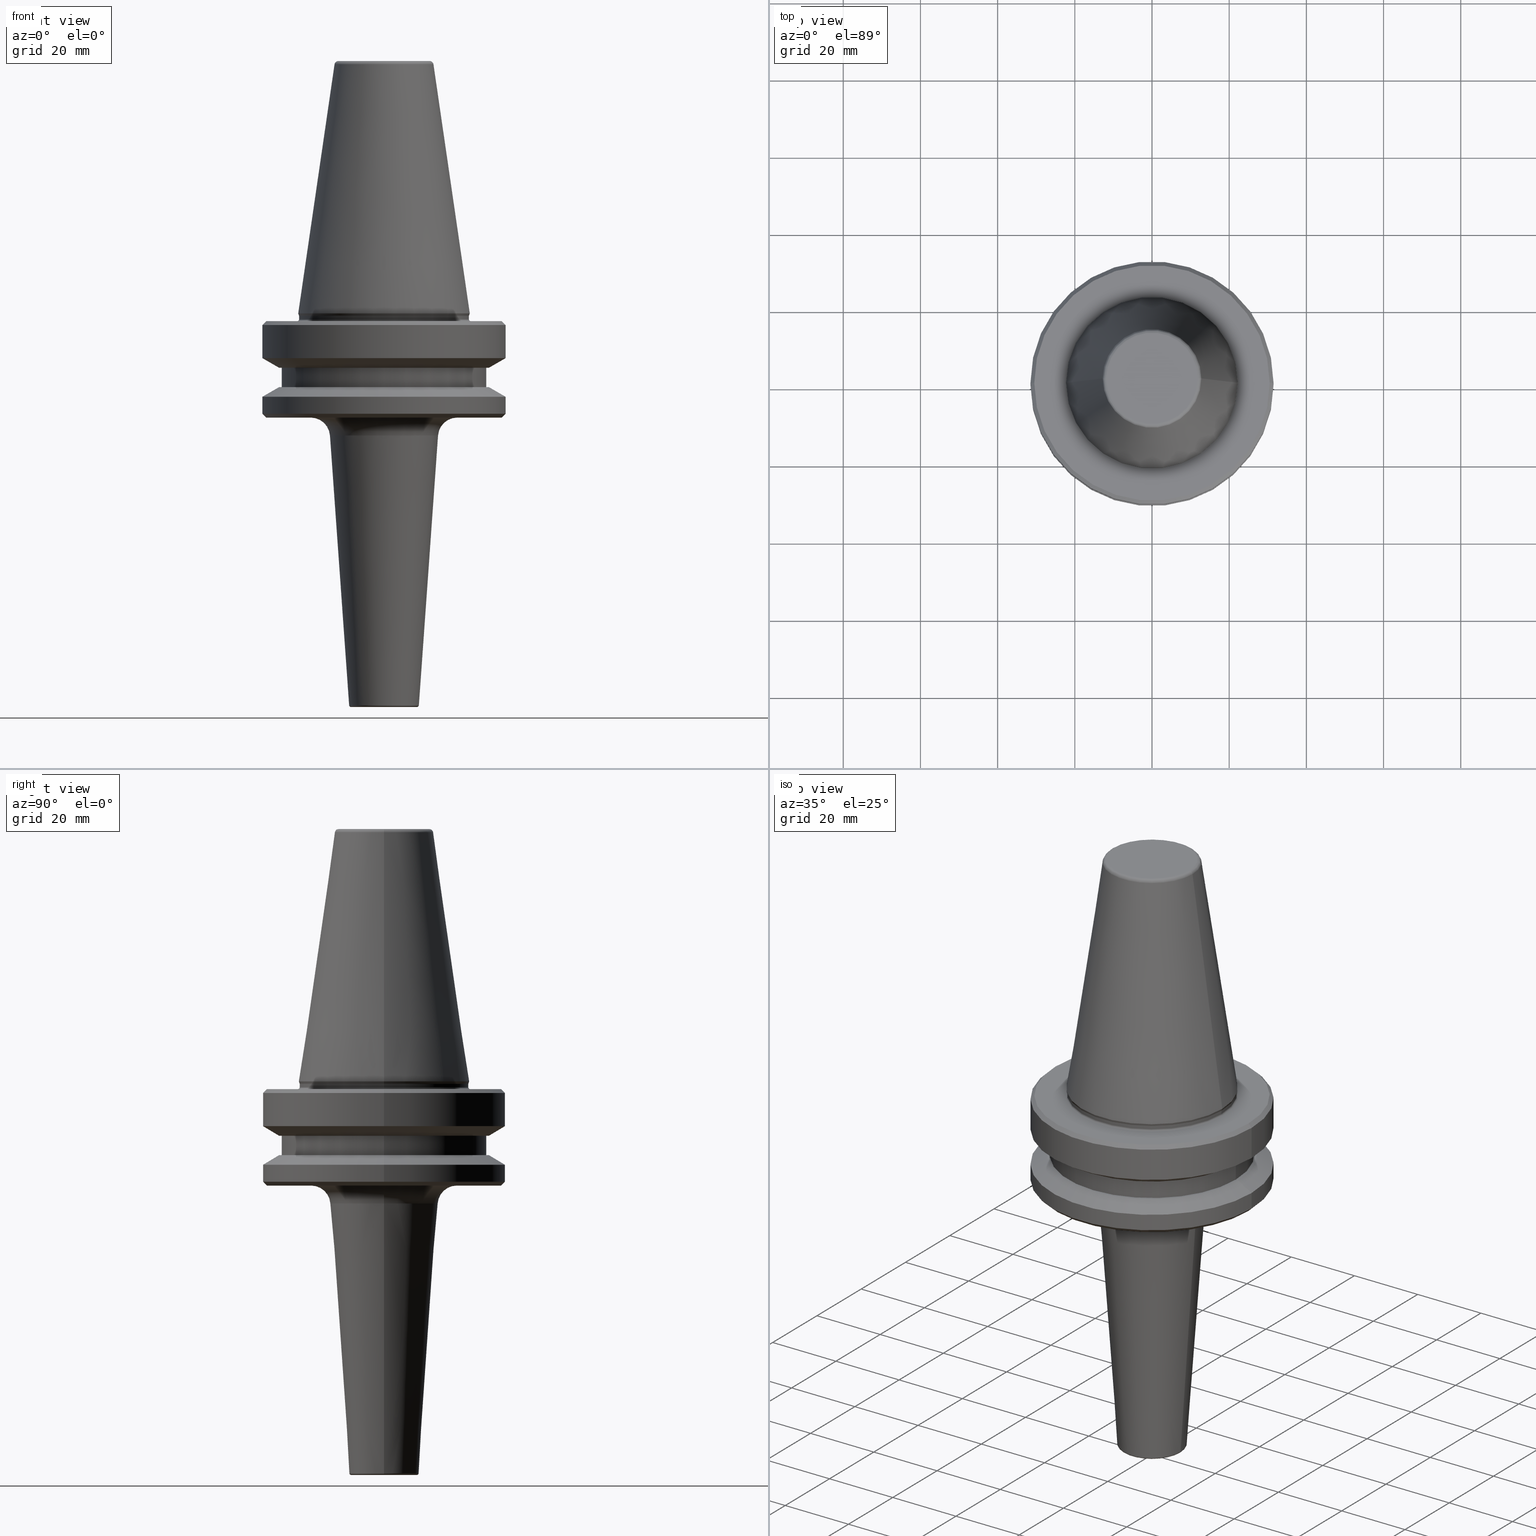
[diagram: canonical four-view strip — front | top / right | iso, engineering-drawing reading convention]
A machine part, canonical four-view strip (front | top / right | iso — engineering-drawing reading convention). The complete STEP part file that produces these views, byte-faithful:
ISO-10303-21;
HEADER;
FILE_DESCRIPTION (( 'STEP AP203' ),
    '1' );
FILE_NAME ('BT40 MCA10 075 AD+B-2.5G 25000 SL.STEP',
    '2019-05-24T10:01:36',
    ( '' ),
    ( '' ),
    'SwSTEP 2.0',
    'SolidWorks 2014',
    '' );
FILE_SCHEMA (( 'CONFIG_CONTROL_DESIGN' ));
ENDSEC;

DATA;
#1 = AXIS2_PLACEMENT_3D ( 'NONE', #465, #622, #132 ) ;
#2 = EDGE_LOOP ( 'NONE', ( #570, #125, #295, #734 ) ) ;
#3 = DIRECTION ( 'NONE',  ( 1.000000000000000000, 0.0000000000000000000, 0.0000000000000000000 ) ) ;
#4 = FACE_OUTER_BOUND ( 'NONE', #796, .T. ) ;
#5 = ORIENTED_EDGE ( 'NONE', *, *, #100, .T. ) ;
#6 = AXIS2_PLACEMENT_3D ( 'NONE', #441, #849, #234 ) ;
#7 = FACE_OUTER_BOUND ( 'NONE', #467, .T. ) ;
#8 = FACE_OUTER_BOUND ( 'NONE', #904, .T. ) ;
#9 = ORIENTED_EDGE ( 'NONE', *, *, #832, .T. ) ;
#10 = FACE_OUTER_BOUND ( 'NONE', #2, .T. ) ;
#11 = DIRECTION ( 'NONE',  ( 1.000000000000000000, 0.0000000000000000000, 0.0000000000000000000 ) ) ;
#12 = EDGE_CURVE ( 'NONE', #233, #459, #845, .T. ) ;
#13 = DIRECTION ( 'NONE',  ( -0.0000000000000000000, -0.0000000000000000000, 1.000000000000000000 ) ) ;
#14 = VERTEX_POINT ( 'NONE', #81 ) ;
#15 = CARTESIAN_POINT ( 'NONE',  ( 0.0000000000000000000, 0.0000000000000000000, -67.40000000000034700 ) ) ;
#16 = CIRCLE ( 'NONE', #935, 31.50000000000008500 ) ;
#17 = EDGE_LOOP ( 'NONE', ( #345, #757, #513, #543 ) ) ;
#18 = DIRECTION ( 'NONE',  ( 1.000000000000000000, 0.0000000000000000000, 0.0000000000000000000 ) ) ;
#19 = EDGE_LOOP ( 'NONE', ( #951, #50, #494, #405 ) ) ;
#20 = ORIENTED_EDGE ( 'NONE', *, *, #133, .T. ) ;
#21 = DIRECTION ( 'NONE',  ( -0.0000000000000000000, -0.0000000000000000000, 1.000000000000000000 ) ) ;
#22 = PRODUCT_DEFINITION_FORMATION_WITH_SPECIFIED_SOURCE ( 'ANY', '', #512, .NOT_KNOWN. ) ;
#23 = DIRECTION ( 'NONE',  ( 0.0000000000000000000, -1.000000000000000000, 0.0000000000000000000 ) ) ;
#24 = APPROVAL_PERSON_ORGANIZATION ( #259, #86, #420 ) ;
#25 = DIRECTION ( 'NONE',  ( 1.000000000000000000, 0.0000000000000000000, 0.0000000000000000000 ) ) ;
#26 = CARTESIAN_POINT ( 'NONE',  ( 0.0000000000000000000, 0.0000000000000000000, -97.40000000000804900 ) ) ;
#27 = AXIS2_PLACEMENT_3D ( 'NONE', #121, #28, #135 ) ;
#28 = DIRECTION ( 'NONE',  ( -0.0000000000000000000, -0.0000000000000000000, 1.000000000000000000 ) ) ;
#29 = PLANE ( 'NONE',  #173 ) ;
#30 = DIRECTION ( 'NONE',  ( 1.000000000000000000, 0.0000000000000000000, 0.0000000000000000000 ) ) ;
#31 = FACE_OUTER_BOUND ( 'NONE', #375, .T. ) ;
#32 = PLANE ( 'NONE',  #371 ) ;
#33 = EDGE_CURVE ( 'NONE', #722, #586, #1043, .T. ) ;
#34 = ORIENTED_EDGE ( 'NONE', *, *, #507, .F. ) ;
#35 = ADVANCED_FACE ( 'NONE', ( #1050 ), #409, .F. ) ;
#36 = CARTESIAN_POINT ( 'NONE',  ( 0.0000000000000000000, 0.0000000000000000000, 6.357346922996331500 ) ) ;
#37 = LINE ( 'NONE', #523, #889 ) ;
#38 = CARTESIAN_POINT ( 'NONE',  ( 14.00000000000000500, 0.0000000000000000000, -97.04555044078098500 ) ) ;
#39 = DIRECTION ( 'NONE',  ( 0.0000000000000000000, 0.0000000000000000000, -1.000000000000000000 ) ) ;
#40 = ORIENTED_EDGE ( 'NONE', *, *, #216, .T. ) ;
#41 = CYLINDRICAL_SURFACE ( 'NONE', #45, 31.50000000000008500 ) ;
#42 = DIRECTION ( 'NONE',  ( 0.0000000000000000000, 0.0000000000000000000, -1.000000000000000000 ) ) ;
#43 = ORIENTED_EDGE ( 'NONE', *, *, #532, .T. ) ;
#44 = FACE_OUTER_BOUND ( 'NONE', #318, .T. ) ;
#45 = AXIS2_PLACEMENT_3D ( 'NONE', #36, #372, #864 ) ;
#46 = DIRECTION ( 'NONE',  ( 1.000000000000000000, 0.0000000000000000000, 0.0000000000000000000 ) ) ;
#47 = ORIENTED_EDGE ( 'NONE', *, *, #93, .T. ) ;
#48 = AXIS2_PLACEMENT_3D ( 'NONE', #749, #122, #306 ) ;
#49 = VERTEX_POINT ( 'NONE', #584 ) ;
#50 = ORIENTED_EDGE ( 'NONE', *, *, #920, .T. ) ;
#51 = VERTEX_POINT ( 'NONE', #604 ) ;
#52 = CARTESIAN_POINT ( 'NONE',  ( 0.0000000000000000000, 0.0000000000000000000, -4.440892098500626200E-013 ) ) ;
#53 = DIRECTION ( 'NONE',  ( -0.0000000000000000000, -0.0000000000000000000, 1.000000000000000000 ) ) ;
#54 = ADVANCED_FACE ( 'NONE', ( #627 ), #727, .T. ) ;
#55 = COORDINATED_UNIVERSAL_TIME_OFFSET ( 5, 30, .AHEAD. ) ;
#56 = CARTESIAN_POINT ( 'NONE',  ( 31.50000000000008500, 0.0000000000000000000, -76.99985799368391800 ) ) ;
#57 = EDGE_CURVE ( 'NONE', #321, #722, #1024, .T. ) ;
#58 = DIRECTION ( 'NONE',  ( -0.0000000000000000000, -0.0000000000000000000, 1.000000000000000000 ) ) ;
#59 = CARTESIAN_POINT ( 'NONE',  ( 0.0000000000000000000, 0.0000000000000000000, -79.50000000000012800 ) ) ;
#60 = ADVANCED_FACE ( 'NONE', ( #200 ), #284, .T. ) ;
#61 = VECTOR ( 'NONE', #671, 1000.000000000000000 ) ;
#62 = ORIENTED_EDGE ( 'NONE', *, *, #133, .F. ) ;
#63 = ADVANCED_FACE ( 'NONE', ( #90 ), #911, .T. ) ;
#64 = FACE_BOUND ( 'NONE', #827, .T. ) ;
#65 = ORIENTED_EDGE ( 'NONE', *, *, #404, .F. ) ;
#66 = FACE_OUTER_BOUND ( 'NONE', #339, .T. ) ;
#67 = AXIS2_PLACEMENT_3D ( 'NONE', #355, #352, #195 ) ;
#68 = CARTESIAN_POINT ( 'NONE',  ( 31.50000000000008500, 0.0000000000000000000, 6.357346922996331500 ) ) ;
#69 = CARTESIAN_POINT ( 'NONE',  ( -12.81220206925736900, 0.0000000000000000000, -0.8556918111122247000 ) ) ;
#70 = ORIENTED_EDGE ( 'NONE', *, *, #207, .F. ) ;
#71 = EDGE_CURVE ( 'NONE', #943, #644, #312, .T. ) ;
#72 = ORIENTED_EDGE ( 'NONE', *, *, #492, .T. ) ;
#73 = EDGE_CURVE ( 'NONE', #459, #233, #938, .T. ) ;
#74 = CARTESIAN_POINT ( 'NONE',  ( 0.0000000000000000000, 0.0000000000000000000, -0.8556918111122247000 ) ) ;
#75 = DIRECTION ( 'NONE',  ( 1.000000000000000000, 0.0000000000000000000, 0.0000000000000000000 ) ) ;
#76 = EDGE_LOOP ( 'NONE', ( #867, #550, #1001, #839 ) ) ;
#77 = ORIENTED_EDGE ( 'NONE', *, *, #809, .T. ) ;
#78 = CARTESIAN_POINT ( 'NONE',  ( 12.81220206925736900, 2.145409868259749100E-015, -0.8556918111122247000 ) ) ;
#79 = VERTEX_POINT ( 'NONE', #136 ) ;
#80 = ORIENTED_EDGE ( 'NONE', *, *, #73, .T. ) ;
#81 = CARTESIAN_POINT ( 'NONE',  ( -14.00000000000000500, 2.019896960283764800E-015, -97.04555044078098500 ) ) ;
#82 = CIRCLE ( 'NONE', #735, 12.81220206925736900 ) ;
#83 = CARTESIAN_POINT ( 'NONE',  ( 0.0000000000000000000, 0.0000000000000000000, -67.40000000000034700 ) ) ;
#84 = LOCAL_TIME ( 15, 31, 36.00000000000000000, #303 ) ;
#85 = ADVANCED_FACE ( 'NONE', ( #693 ), #668, .T. ) ;
#86 = APPROVAL ( #912, 'UNSPECIFIED' ) ;
#87 = CARTESIAN_POINT ( 'NONE',  ( 0.0000000000000000000, 0.0000000000000000000, -92.40000000000803500 ) ) ;
#88 = EDGE_CURVE ( 'NONE', #799, #816, #887, .T. ) ;
#89 = ORIENTED_EDGE ( 'NONE', *, *, #1000, .T. ) ;
#90 = FACE_OUTER_BOUND ( 'NONE', #308, .T. ) ;
#91 = AXIS2_PLACEMENT_3D ( 'NONE', #502, #334, #360 ) ;
#92 = VERTEX_POINT ( 'NONE', #462 ) ;
#93 = EDGE_CURVE ( 'NONE', #436, #799, #262, .T. ) ;
#94 = ADVANCED_FACE ( 'NONE', ( #31 ), #647, .T. ) ;
#95 = CIRCLE ( 'NONE', #1048, 5.000000000000008000 ) ;
#96 = VERTEX_POINT ( 'NONE', #113 ) ;
#97 = CARTESIAN_POINT ( 'NONE',  ( 0.0000000000000000000, 0.0000000000000000000, 0.0000000000000000000 ) ) ;
#98 = ORIENTED_EDGE ( 'NONE', *, *, #699, .T. ) ;
#99 = VERTEX_POINT ( 'NONE', #211 ) ;
#100 = EDGE_CURVE ( 'NONE', #595, #435, #243, .T. ) ;
#101 = CARTESIAN_POINT ( 'NONE',  ( 0.0000000000000000000, 0.0000000000000000000, -65.40000000000057400 ) ) ;
#102 = ORIENTED_EDGE ( 'NONE', *, *, #232, .T. ) ;
#103 = AXIS2_PLACEMENT_3D ( 'NONE', #448, #455, #470 ) ;
#104 = VECTOR ( 'NONE', #1019, 1000.000000000000000 ) ;
#105 = CARTESIAN_POINT ( 'NONE',  ( 0.0000000000000000000, 0.0000000000000000000, -0.8556918111122247000 ) ) ;
#106 = ORGANIZATION ( 'UNSPECIFIED', 'UNSPECIFIED', '' ) ;
#107 = AXIS2_PLACEMENT_3D ( 'NONE', #403, #692, #937 ) ;
#108 = DIRECTION ( 'NONE',  ( 1.000000000000000000, 0.0000000000000000000, 0.0000000000000000000 ) ) ;
#109 = DIRECTION ( 'NONE',  ( 1.000000000000000000, 0.0000000000000000000, 0.0000000000000000000 ) ) ;
#110 = EDGE_CURVE ( 'NONE', #895, #943, #454, .T. ) ;
#111 = VECTOR ( 'NONE', #489, 1000.000000000000000 ) ;
#112 = DIRECTION ( 'NONE',  ( 0.07088991184540963100, 0.0000000000000000000, 0.9974841454371843300 ) ) ;
#113 = CARTESIAN_POINT ( 'NONE',  ( -30.49999999999997200, 0.0000000000000000000, -67.40000000000034700 ) ) ;
#114 = ORIENTED_EDGE ( 'NONE', *, *, #812, .T. ) ;
#115 = DIRECTION ( 'NONE',  ( 1.000000000000000000, 0.0000000000000000000, 0.0000000000000000000 ) ) ;
#116 = VECTOR ( 'NONE', #281, 1000.000000000000000 ) ;
#117 = ORIENTED_EDGE ( 'NONE', *, *, #276, .T. ) ;
#118 = ADVANCED_FACE ( 'NONE', ( #4 ), #834, .T. ) ;
#119 = VERTEX_POINT ( 'NONE', #808 ) ;
#120 = DIRECTION ( 'NONE',  ( -0.8660254037844383700, 1.060575238724906500E-016, 0.5000000000000003300 ) ) ;
#121 = CARTESIAN_POINT ( 'NONE',  ( 0.0000000000000000000, 0.0000000000000000000, -66.08871321165987900 ) ) ;
#122 = DIRECTION ( 'NONE',  ( -0.0000000000000000000, -0.0000000000000000000, 1.000000000000000000 ) ) ;
#123 = AXIS2_PLACEMENT_3D ( 'NONE', #74, #396, #235 ) ;
#124 = DIRECTION ( 'NONE',  ( 1.000000000000000000, 0.0000000000000000000, 0.0000000000000000000 ) ) ;
#125 = ORIENTED_EDGE ( 'NONE', *, *, #532, .F. ) ;
#126 = PERSON_AND_ORGANIZATION_ROLE ( 'classification_officer' ) ;
#127 = ADVANCED_FACE ( 'NONE', ( #422 ), #479, .F. ) ;
#128 = EDGE_CURVE ( 'NONE', #519, #547, #1035, .T. ) ;
#129 = CIRCLE ( 'NONE', #614, 31.50000000000008500 ) ;
#130 = ORIENTED_EDGE ( 'NONE', *, *, #232, .F. ) ;
#131 = DIRECTION ( 'NONE',  ( -0.0000000000000000000, -0.0000000000000000000, 1.000000000000000000 ) ) ;
#132 = DIRECTION ( 'NONE',  ( 1.000000000000000000, 0.0000000000000000000, 0.0000000000000000000 ) ) ;
#133 = EDGE_CURVE ( 'NONE', #464, #92, #865, .T. ) ;
#134 = CIRCLE ( 'NONE', #518, 27.16962701892322600 ) ;
#135 = DIRECTION ( 'NONE',  ( 1.000000000000000000, 0.0000000000000000000, 0.0000000000000000000 ) ) ;
#136 = CARTESIAN_POINT ( 'NONE',  ( 22.02412295168553100, 0.0000000000000000000, -65.95190515433003500 ) ) ;
#137 = DIRECTION ( 'NONE',  ( -1.000000000000000000, 0.0000000000000000000, 0.0000000000000000000 ) ) ;
#138 = CARTESIAN_POINT ( 'NONE',  ( 0.0000000000000000000, 0.0000000000000000000, -66.90000000000040400 ) ) ;
#139 = ORIENTED_EDGE ( 'NONE', *, *, #283, .T. ) ;
#140 = CIRCLE ( 'NONE', #806, 0.9999999999999696900 ) ;
#141 = CC_DESIGN_APPROVAL ( #86, ( #22 ) ) ;
#142 = DIRECTION ( 'NONE',  ( 1.000000000000000000, 0.0000000000000000000, 0.0000000000000000000 ) ) ;
#143 = DIRECTION ( 'NONE',  ( 1.224646799147353200E-016, 1.000000000000000000, 0.0000000000000000000 ) ) ;
#144 = DIRECTION ( 'NONE',  ( 1.000000000000000000, 0.0000000000000000000, 0.0000000000000000000 ) ) ;
#145 = EDGE_CURVE ( 'NONE', #49, #947, #508, .T. ) ;
#146 = ADVANCED_FACE ( 'NONE', ( #615 ), #397, .T. ) ;
#147 = VERTEX_POINT ( 'NONE', #677 ) ;
#148 = DIRECTION ( 'NONE',  ( -0.0000000000000000000, -0.0000000000000000000, 1.000000000000000000 ) ) ;
#149 = DIRECTION ( 'NONE',  ( 0.0000000000000000000, 0.0000000000000000000, -1.000000000000000000 ) ) ;
#150 = ORIENTED_EDGE ( 'NONE', *, *, #1008, .T. ) ;
#151 = FACE_OUTER_BOUND ( 'NONE', #495, .T. ) ;
#152 = AXIS2_PLACEMENT_3D ( 'NONE', #378, #599, #115 ) ;
#153 = APPROVAL_DATE_TIME ( #369, #474 ) ;
#154 = ORIENTED_EDGE ( 'NONE', *, *, #507, .T. ) ;
#155 = CARTESIAN_POINT ( 'NONE',  ( 0.0000000000000000000, 0.0000000000000000000, -87.00014200631733300 ) ) ;
#156 = ORIENTED_EDGE ( 'NONE', *, *, #920, .F. ) ;
#157 = DIRECTION ( 'NONE',  ( 1.000000000000000000, 0.0000000000000000000, 0.0000000000000000000 ) ) ;
#158 = DIRECTION ( 'NONE',  ( 1.000000000000000000, 0.0000000000000000000, 0.0000000000000000000 ) ) ;
#159 = FACE_OUTER_BOUND ( 'NONE', #994, .T. ) ;
#160 = ORIENTED_EDGE ( 'NONE', *, *, #407, .T. ) ;
#161 = CIRCLE ( 'NONE', #247, 22.22499999999993700 ) ;
#162 = CARTESIAN_POINT ( 'NONE',  ( 0.0000000000000000000, 0.0000000000000000000, -1.000000000000334000 ) ) ;
#163 =( LENGTH_UNIT ( ) NAMED_UNIT ( * ) SI_UNIT ( .MILLI., .METRE. ) );
#164 = EDGE_LOOP ( 'NONE', ( #154, #117 ) ) ;
#165 = AXIS2_PLACEMENT_3D ( 'NONE', #162, #690, #777 ) ;
#166 = DIRECTION ( 'NONE',  ( -0.1443081888881795900, 0.0000000000000000000, -0.9895327920891826600 ) ) ;
#167 = AXIS2_PLACEMENT_3D ( 'NONE', #857, #1034, #327 ) ;
#168 = DIRECTION ( 'NONE',  ( 0.0000000000000000000, -1.000000000000000000, 0.0000000000000000000 ) ) ;
#169 = ORIENTED_EDGE ( 'NONE', *, *, #1033, .F. ) ;
#170 = CARTESIAN_POINT ( 'NONE',  ( 0.0000000000000000000, 0.0000000000000000000, -84.50000000000068200 ) ) ;
#171 = CARTESIAN_POINT ( 'NONE',  ( 0.0000000000000000000, 0.0000000000000000000, -0.8556918111122247000 ) ) ;
#172 = CIRCLE ( 'NONE', #419, 0.4999999999999449300 ) ;
#173 = AXIS2_PLACEMENT_3D ( 'NONE', #767, #39, #1016 ) ;
#174 = CARTESIAN_POINT ( 'NONE',  ( -12.81220206925736900, 0.0000000000000000000, -0.8556918111122247000 ) ) ;
#175 = EDGE_LOOP ( 'NONE', ( #114, #756, #1022, #675 ) ) ;
#176 = EDGE_CURVE ( 'NONE', #811, #926, #187, .T. ) ;
#177 = ORIENTED_EDGE ( 'NONE', *, *, #969, .F. ) ;
#178 = DIRECTION ( 'NONE',  ( -0.0000000000000000000, -0.0000000000000000000, 1.000000000000000000 ) ) ;
#179 = EDGE_CURVE ( 'NONE', #99, #464, #810, .T. ) ;
#180 = CARTESIAN_POINT ( 'NONE',  ( -30.49999999999241900, 3.796405077356336000E-015, -92.40000000000803500 ) ) ;
#181 = APPROVAL_PERSON_ORGANIZATION ( #395, #474, #587 ) ;
#182 = EDGE_LOOP ( 'NONE', ( #150, #139, #602, #263 ) ) ;
#183 = DATE_TIME_ROLE ( 'creation_date' ) ;
#184 = EDGE_CURVE ( 'NONE', #779, #811, #591, .T. ) ;
#185 = AXIS2_PLACEMENT_3D ( 'NONE', #822, #398, #379 ) ;
#186 = DIRECTION ( 'NONE',  ( 1.000000000000000000, 0.0000000000000000000, 0.0000000000000000000 ) ) ;
#187 = LINE ( 'NONE', #174, #217 ) ;
#188 = ORIENTED_EDGE ( 'NONE', *, *, #939, .T. ) ;
#189 = AXIS2_PLACEMENT_3D ( 'NONE', #720, #445, #1002 ) ;
#190 = ADVANCED_FACE ( 'NONE', ( #159 ), #821, .T. ) ;
#191 = EDGE_CURVE ( 'NONE', #713, #99, #129, .T. ) ;
#192 = EDGE_CURVE ( 'NONE', #947, #147, #993, .T. ) ;
#193 = CONICAL_SURFACE ( 'NONE', #1014, 12.81220206925736900, 0.1448138077623198300 ) ;
#194 = FACE_OUTER_BOUND ( 'NONE', #204, .T. ) ;
#195 = DIRECTION ( 'NONE',  ( 1.000000000000000000, 0.0000000000000000000, 0.0000000000000000000 ) ) ;
#196 = DIRECTION ( 'NONE',  ( -0.0000000000000000000, -0.0000000000000000000, 1.000000000000000000 ) ) ;
#197 = ORIENTED_EDGE ( 'NONE', *, *, #432, .T. ) ;
#198 = FACE_OUTER_BOUND ( 'NONE', #175, .T. ) ;
#199 = ADVANCED_FACE ( 'NONE', ( #787 ), #566, .T. ) ;
#200 = FACE_OUTER_BOUND ( 'NONE', #737, .T. ) ;
#201 = CIRCLE ( 'NONE', #152, 11.82266927716813000 ) ;
#202 = CARTESIAN_POINT ( 'NONE',  ( 8.534273255166967300, 0.0000000000000000000, -167.4000000000080200 ) ) ;
#203 = DIRECTION ( 'NONE',  ( 0.0000000000000000000, 0.0000000000000000000, -1.000000000000000000 ) ) ;
#204 = EDGE_LOOP ( 'NONE', ( #249, #380, #274, #965 ) ) ;
#205 = CC_DESIGN_PERSON_AND_ORGANIZATION_ASSIGNMENT ( #859, #666, ( #22 ) ) ;
#206 = DIRECTION ( 'NONE',  ( 1.000000000000000000, 0.0000000000000000000, 0.0000000000000000000 ) ) ;
#207 = EDGE_CURVE ( 'NONE', #586, #14, #1017, .T. ) ;
#208 = ADVANCED_FACE ( 'NONE', ( #151 ), #755, .T. ) ;
#209 = DIRECTION ( 'NONE',  ( -0.0000000000000000000, -0.0000000000000000000, 1.000000000000000000 ) ) ;
#210 = COORDINATED_UNIVERSAL_TIME_OFFSET ( 5, 30, .AHEAD. ) ;
#211 = CARTESIAN_POINT ( 'NONE',  ( -31.50000000000008500, 3.857637417314172900E-015, -76.99985799368391800 ) ) ;
#212 = AXIS2_PLACEMENT_3D ( 'NONE', #342, #475, #724 ) ;
#213 = DIRECTION ( 'NONE',  ( -0.0000000000000000000, -0.0000000000000000000, 1.000000000000000000 ) ) ;
#214 = DIRECTION ( 'NONE',  ( -0.0000000000000000000, -0.0000000000000000000, 1.000000000000000000 ) ) ;
#215 = DIRECTION ( 'NONE',  ( -0.0000000000000000000, -0.0000000000000000000, 1.000000000000000000 ) ) ;
#216 = EDGE_CURVE ( 'NONE', #229, #799, #780, .T. ) ;
#217 = VECTOR ( 'NONE', #166, 1000.000000000000000 ) ;
#218 = DIRECTION ( 'NONE',  ( 1.224646799147353200E-016, 1.000000000000000000, 0.0000000000000000000 ) ) ;
#219 = EDGE_LOOP ( 'NONE', ( #169, #684, #628, #338 ) ) ;
#220 = CARTESIAN_POINT ( 'NONE',  ( 0.0000000000000000000, 0.0000000000000000000, -87.00014200631733300 ) ) ;
#221 = CIRCLE ( 'NONE', #6, 26.50000000000019200 ) ;
#222 = VECTOR ( 'NONE', #890, 1000.000000000000100 ) ;
#223 = EDGE_CURVE ( 'NONE', #79, #582, #964, .T. ) ;
#224 = ORIENTED_EDGE ( 'NONE', *, *, #449, .T. ) ;
#225 = CIRCLE ( 'NONE', #381, 31.50000000000008500 ) ;
#226 = DIRECTION ( 'NONE',  ( -0.8660254037844332700, 0.0000000000000000000, -0.5000000000000093300 ) ) ;
#227 = DIRECTION ( 'NONE',  ( -0.0000000000000000000, -0.0000000000000000000, 1.000000000000000000 ) ) ;
#228 = AXIS2_PLACEMENT_3D ( 'NONE', #26, #53, #612 ) ;
#229 = VERTEX_POINT ( 'NONE', #468 ) ;
#230 = DIRECTION ( 'NONE',  ( -1.000000000000000000, 0.0000000000000000000, 0.0000000000000000000 ) ) ;
#231 = CONICAL_SURFACE ( 'NONE', #984, 31.50000000000008500, 1.047197551196587000 ) ;
#232 = EDGE_CURVE ( 'NONE', #147, #436, #341, .T. ) ;
#233 = VERTEX_POINT ( 'NONE', #897 ) ;
#234 = DIRECTION ( 'NONE',  ( 1.000000000000000000, 0.0000000000000000000, 0.0000000000000000000 ) ) ;
#235 = DIRECTION ( 'NONE',  ( -1.000000000000000000, 0.0000000000000000000, 0.0000000000000000000 ) ) ;
#236 = EDGE_CURVE ( 'NONE', #811, #564, #540, .T. ) ;
#237 = DIRECTION ( 'NONE',  ( -0.0000000000000000000, -0.0000000000000000000, 1.000000000000000000 ) ) ;
#238 = DATE_AND_TIME ( #446, #661 ) ;
#239 = DIRECTION ( 'NONE',  ( -1.000000000000000000, 1.224646799147354400E-016, 0.0000000000000000000 ) ) ;
#240 = DIRECTION ( 'NONE',  ( 0.0000000000000000000, -0.0000000000000000000, 1.000000000000000000 ) ) ;
#241 = CARTESIAN_POINT ( 'NONE',  ( 0.0000000000000000000, 0.0000000000000000000, -92.40000000000803500 ) ) ;
#242 = AXIS2_PLACEMENT_3D ( 'NONE', #373, #282, #186 ) ;
#243 = CIRCLE ( 'NONE', #1021, 27.16962701892322600 ) ;
#244 = AXIS2_PLACEMENT_3D ( 'NONE', #171, #746, #46 ) ;
#245 = CIRCLE ( 'NONE', #189, 14.00000000000000500 ) ;
#246 = LINE ( 'NONE', #626, #222 ) ;
#247 = AXIS2_PLACEMENT_3D ( 'NONE', #833, #521, #142 ) ;
#248 = CARTESIAN_POINT ( 'NONE',  ( 0.0000000000000000000, 0.0000000000000000000, -67.40000000000034700 ) ) ;
#249 = ORIENTED_EDGE ( 'NONE', *, *, #184, .T. ) ;
#250 = VECTOR ( 'NONE', #328, 1000.000000000000000 ) ;
#251 = EDGE_CURVE ( 'NONE', #527, #892, #366, .T. ) ;
#252 = ORIENTED_EDGE ( 'NONE', *, *, #980, .F. ) ;
#253 = LINE ( 'NONE', #38, #654 ) ;
#254 = CARTESIAN_POINT ( 'NONE',  ( 26.50000000000019200, 0.0000000000000000000, -84.50000000000068200 ) ) ;
#255 = CARTESIAN_POINT ( 'NONE',  ( 18.98742072718592100, 0.0000000000000000000, -97.40000000000804900 ) ) ;
#256 = ORIENTED_EDGE ( 'NONE', *, *, #223, .T. ) ;
#257 = DIRECTION ( 'NONE',  ( 1.000000000000000000, 0.0000000000000000000, 0.0000000000000000000 ) ) ;
#258 = ORIENTED_EDGE ( 'NONE', *, *, #544, .T. ) ;
#259 = PERSON_AND_ORGANIZATION ( #613, #106 ) ;
#260 = CC_DESIGN_PERSON_AND_ORGANIZATION_ASSIGNMENT ( #638, #1055, ( #22 ) ) ;
#261 = APPROVAL_ROLE ( '' ) ;
#262 = LINE ( 'NONE', #978, #61 ) ;
#263 = ORIENTED_EDGE ( 'NONE', *, *, #223, .F. ) ;
#264 = FACE_BOUND ( 'NONE', #759, .T. ) ;
#265 = ORIENTED_EDGE ( 'NONE', *, *, #664, .T. ) ;
#266 = TOROIDAL_SURFACE ( 'NONE', #228, 18.98742072718592100, 5.000000000000008000 ) ;
#267 = CARTESIAN_POINT ( 'NONE',  ( -18.98742072718592100, 2.325288401761234800E-015, -92.40000000000803500 ) ) ;
#268 = ORIENTED_EDGE ( 'NONE', *, *, #392, .T. ) ;
#269 = CARTESIAN_POINT ( 'NONE',  ( 0.0000000000000000000, 5.444263640425937500E-013, -167.4000000000080500 ) ) ;
#270 = TOROIDAL_SURFACE ( 'NONE', #885, 22.40000000000019800, 0.4000000000001546800 ) ;
#271 = CARTESIAN_POINT ( 'NONE',  ( 22.00000000000002100, 0.0000000000000000000, -66.90000000000040400 ) ) ;
#272 = ORIENTED_EDGE ( 'NONE', *, *, #323, .F. ) ;
#273 = AXIS2_PLACEMENT_3D ( 'NONE', #764, #884, #304 ) ;
#274 = ORIENTED_EDGE ( 'NONE', *, *, #664, .F. ) ;
#275 = ORIENTED_EDGE ( 'NONE', *, *, #145, .T. ) ;
#276 = EDGE_CURVE ( 'NONE', #616, #96, #315, .T. ) ;
#277 = DIRECTION ( 'NONE',  ( 1.000000000000000000, 0.0000000000000000000, 0.0000000000000000000 ) ) ;
#278 = DIRECTION ( 'NONE',  ( 1.000000000000000000, 0.0000000000000000000, 0.0000000000000000000 ) ) ;
#279 = PERSON_AND_ORGANIZATION ( #613, #106 ) ;
#280 = DIRECTION ( 'NONE',  ( 1.000000000000000000, 0.0000000000000000000, 0.0000000000000000000 ) ) ;
#281 = DIRECTION ( 'NONE',  ( 0.8660254037844332700, 1.060575238724900300E-016, -0.5000000000000093300 ) ) ;
#282 = DIRECTION ( 'NONE',  ( -0.0000000000000000000, -0.0000000000000000000, 1.000000000000000000 ) ) ;
#283 = EDGE_CURVE ( 'NONE', #519, #926, #940, .T. ) ;
#284 = CYLINDRICAL_SURFACE ( 'NONE', #625, 31.50000000000008500 ) ;
#285 = CARTESIAN_POINT ( 'NONE',  ( 0.0000000000000000000, 0.0000000000000000000, -166.9354449559310200 ) ) ;
#286 = DIRECTION ( 'NONE',  ( 1.000000000000000000, 0.0000000000000000000, 0.0000000000000000000 ) ) ;
#287 = AXIS2_PLACEMENT_3D ( 'NONE', #702, #1015, #451 ) ;
#288 = CIRCLE ( 'NONE', #107, 22.02412295168554100 ) ;
#289 = CARTESIAN_POINT ( 'NONE',  ( 0.0000000000000000000, 0.0000000000000000000, -97.04555044078098500 ) ) ;
#290 = ORIENTED_EDGE ( 'NONE', *, *, #385, .T. ) ;
#291 = FACE_OUTER_BOUND ( 'NONE', #17, .T. ) ;
#292 = AXIS2_PLACEMENT_3D ( 'NONE', #856, #976, #439 ) ;
#293 = DIRECTION ( 'NONE',  ( -0.0000000000000000000, -0.0000000000000000000, 1.000000000000000000 ) ) ;
#294 = CARTESIAN_POINT ( 'NONE',  ( 0.0000000000000000000, 0.0000000000000000000, -79.50000000000012800 ) ) ;
#295 = ORIENTED_EDGE ( 'NONE', *, *, #251, .T. ) ;
#296 = DIRECTION ( 'NONE',  ( 1.000000000000000000, 0.0000000000000000000, 0.0000000000000000000 ) ) ;
#297 = EDGE_LOOP ( 'NONE', ( #605, #553 ) ) ;
#298 = ORIENTED_EDGE ( 'NONE', *, *, #728, .T. ) ;
#299 = ORIENTED_EDGE ( 'NONE', *, *, #1052, .F. ) ;
#300 = DIRECTION ( 'NONE',  ( -0.0000000000000000000, -0.0000000000000000000, 1.000000000000000000 ) ) ;
#301 = FACE_OUTER_BOUND ( 'NONE', #326, .T. ) ;
#302 = DIRECTION ( 'NONE',  ( 1.000000000000000000, 0.0000000000000000000, 0.0000000000000000000 ) ) ;
#303 = COORDINATED_UNIVERSAL_TIME_OFFSET ( 5, 30, .AHEAD. ) ;
#304 = DIRECTION ( 'NONE',  ( 1.000000000000000000, 0.0000000000000000000, 0.0000000000000000000 ) ) ;
#305 = SECURITY_CLASSIFICATION ( '', '', #786 ) ;
#306 = DIRECTION ( 'NONE',  ( 1.000000000000000000, 0.0000000000000000000, 0.0000000000000000000 ) ) ;
#307 = DIRECTION ( 'NONE',  ( -0.0000000000000000000, -0.0000000000000000000, 1.000000000000000000 ) ) ;
#308 = EDGE_LOOP ( 'NONE', ( #252, #652, #788, #565 ) ) ;
#309 = DIRECTION ( 'NONE',  ( 1.000000000000000000, 0.0000000000000000000, 0.0000000000000000000 ) ) ;
#310 = EDGE_CURVE ( 'NONE', #900, #14, #95, .T. ) ;
#311 = CARTESIAN_POINT ( 'NONE',  ( -22.00000000000002100, 2.694222958124179600E-015, -66.08871321165987900 ) ) ;
#312 = CIRCLE ( 'NONE', #952, 0.4999999999999449300 ) ;
#313 = DIRECTION ( 'NONE',  ( -0.0000000000000000000, -0.0000000000000000000, 1.000000000000000000 ) ) ;
#314 = ORIENTED_EDGE ( 'NONE', *, *, #909, .T. ) ;
#315 = CIRCLE ( 'NONE', #1004, 30.49999999999997200 ) ;
#316 = CARTESIAN_POINT ( 'NONE',  ( -31.50000000000008500, 3.857637417314172900E-015, -87.00014200631733300 ) ) ;
#317 = ORIENTED_EDGE ( 'NONE', *, *, #868, .F. ) ;
#318 = EDGE_LOOP ( 'NONE', ( #606, #469, #224, #290 ) ) ;
#319 = ADVANCED_FACE ( 'NONE', ( #64, #731 ), #29, .F. ) ;
#320 = AXIS2_PLACEMENT_3D ( 'NONE', #476, #689, #517 ) ;
#321 = VERTEX_POINT ( 'NONE', #202 ) ;
#322 = DIRECTION ( 'NONE',  ( 0.0000000000000000000, 0.0000000000000000000, -1.000000000000000000 ) ) ;
#323 = EDGE_CURVE ( 'NONE', #519, #79, #288, .T. ) ;
#324 = UNCERTAINTY_MEASURE_WITH_UNIT (LENGTH_MEASURE( 1.000000000000000100E-005 ), #163, 'distance_accuracy_value', 'NONE');
#325 = ORIENTED_EDGE ( 'NONE', *, *, #672, .F. ) ;
#326 = EDGE_LOOP ( 'NONE', ( #923, #487 ) ) ;
#327 = DIRECTION ( 'NONE',  ( 1.000000000000000000, 0.0000000000000000000, 0.0000000000000000000 ) ) ;
#328 = DIRECTION ( 'NONE',  ( -0.0000000000000000000, -0.0000000000000000000, 1.000000000000000000 ) ) ;
#329 = VECTOR ( 'NONE', #875, 1000.000000000000000 ) ;
#330 = AXIS2_PLACEMENT_3D ( 'NONE', #477, #237, #717 ) ;
#331 = ORIENTED_EDGE ( 'NONE', *, *, #73, .F. ) ;
#332 = CARTESIAN_POINT ( 'NONE',  ( -22.22499999999993700, 2.721777511104985000E-015, -65.40000000000057400 ) ) ;
#333 = CARTESIAN_POINT ( 'NONE',  ( -27.16962701892256100, 0.0000000000000000000, -84.50000000000068200 ) ) ;
#334 = DIRECTION ( 'NONE',  ( -0.0000000000000000000, -0.0000000000000000000, 1.000000000000000000 ) ) ;
#335 = AXIS2_PLACEMENT_3D ( 'NONE', #791, #365, #709 ) ;
#336 = DIRECTION ( 'NONE',  ( -0.0000000000000000000, -0.0000000000000000000, 1.000000000000000000 ) ) ;
#337 = DIRECTION ( 'NONE',  ( 1.000000000000000000, 0.0000000000000000000, 0.0000000000000000000 ) ) ;
#338 = ORIENTED_EDGE ( 'NONE', *, *, #463, .F. ) ;
#339 = EDGE_LOOP ( 'NONE', ( #695, #456, #314, #62 ) ) ;
#340 = DIRECTION ( 'NONE',  ( 1.000000000000000000, 0.0000000000000000000, 0.0000000000000000000 ) ) ;
#341 = CIRCLE ( 'NONE', #848, 31.50000000000008500 ) ;
#342 = CARTESIAN_POINT ( 'NONE',  ( 0.0000000000000000000, 0.0000000000000000000, -67.40000000000034700 ) ) ;
#343 = ORIENTED_EDGE ( 'NONE', *, *, #447, .T. ) ;
#344 = APPLICATION_PROTOCOL_DEFINITION ( 'international standard', 'config_control_design', 1994, #753 ) ;
#345 = ORIENTED_EDGE ( 'NONE', *, *, #392, .F. ) ;
#346 = EDGE_LOOP ( 'NONE', ( #272, #538, #390, #496 ) ) ;
#347 = AXIS2_PLACEMENT_3D ( 'NONE', #437, #558, #637 ) ;
#348 = DIRECTION ( 'NONE',  ( 1.000000000000000000, 0.0000000000000000000, 0.0000000000000000000 ) ) ;
#349 = ADVANCED_FACE ( 'NONE', ( #698, #483 ), #1013, .T. ) ;
#350 = VECTOR ( 'NONE', #631, 1000.000000000000100 ) ;
#351 = VERTEX_POINT ( 'NONE', #659 ) ;
#352 = DIRECTION ( 'NONE',  ( -0.0000000000000000000, -0.0000000000000000000, 1.000000000000000000 ) ) ;
#353 = DIRECTION ( 'NONE',  ( 1.000000000000000000, 0.0000000000000000000, 0.0000000000000000000 ) ) ;
#354 = CIRCLE ( 'NONE', #620, 22.49999999999996400 ) ;
#355 = CARTESIAN_POINT ( 'NONE',  ( 0.0000000000000000000, 0.0000000000000000000, -84.50000000000068200 ) ) ;
#356 = ADVANCED_FACE ( 'NONE', ( #674, #264 ), #945, .F. ) ;
#357 = ORIENTED_EDGE ( 'NONE', *, *, #778, .F. ) ;
#358 = DIRECTION ( 'NONE',  ( -0.0000000000000000000, -0.0000000000000000000, 1.000000000000000000 ) ) ;
#359 = CARTESIAN_POINT ( 'NONE',  ( 0.0000000000000000000, 0.0000000000000000000, -4.440892098500626200E-013 ) ) ;
#360 = DIRECTION ( 'NONE',  ( 1.000000000000000000, 0.0000000000000000000, 0.0000000000000000000 ) ) ;
#361 = VECTOR ( 'NONE', #120, 1000.000000000000100 ) ;
#362 = CC_DESIGN_PERSON_AND_ORGANIZATION_ASSIGNMENT ( #418, #126, ( #305 ) ) ;
#363 = DIRECTION ( 'NONE',  ( 0.0000000000000000000, -1.000000000000000000, 0.0000000000000000000 ) ) ;
#364 = EDGE_CURVE ( 'NONE', #459, #533, #37, .T. ) ;
#365 = DIRECTION ( 'NONE',  ( 0.0000000000000000000, -0.0000000000000000000, 1.000000000000000000 ) ) ;
#366 = CIRCLE ( 'NONE', #957, 5.000000000000004400 ) ;
#367 = ADVANCED_FACE ( 'NONE', ( #8 ), #649, .T. ) ;
#368 = DIRECTION ( 'NONE',  ( -0.0000000000000000000, -0.0000000000000000000, 1.000000000000000000 ) ) ;
#369 = DATE_AND_TIME ( #585, #804 ) ;
#370 = EDGE_LOOP ( 'NONE', ( #592, #160, #971, #130 ) ) ;
#371 = AXIS2_PLACEMENT_3D ( 'NONE', #359, #203, #640 ) ;
#372 = DIRECTION ( 'NONE',  ( -0.0000000000000000000, -0.0000000000000000000, 1.000000000000000000 ) ) ;
#373 = CARTESIAN_POINT ( 'NONE',  ( 0.0000000000000000000, 0.0000000000000000000, -66.90000000000040400 ) ) ;
#374 = VECTOR ( 'NONE', #213, 1000.000000000000000 ) ;
#375 = EDGE_LOOP ( 'NONE', ( #1018, #970, #988, #635 ) ) ;
#376 = EDGE_CURVE ( 'NONE', #49, #436, #458, .T. ) ;
#377 = CONICAL_SURFACE ( 'NONE', #123, 12.81220206925736900, 0.1448138077623198300 ) ;
#378 = CARTESIAN_POINT ( 'NONE',  ( 0.0000000000000000000, 0.0000000000000000000, -4.440892098500626200E-013 ) ) ;
#379 = DIRECTION ( 'NONE',  ( 1.000000000000000000, 0.0000000000000000000, 0.0000000000000000000 ) ) ;
#380 = ORIENTED_EDGE ( 'NONE', *, *, #236, .T. ) ;
#381 = AXIS2_PLACEMENT_3D ( 'NONE', #393, #955, #309 ) ;
#382 = CARTESIAN_POINT ( 'NONE',  ( 0.0000000000000000000, 0.0000000000000000000, -76.99985799368391800 ) ) ;
#383 = EDGE_CURVE ( 'NONE', #435, #713, #246, .T. ) ;
#384 = DIRECTION ( 'NONE',  ( -0.0000000000000000000, -0.0000000000000000000, 1.000000000000000000 ) ) ;
#385 = EDGE_CURVE ( 'NONE', #816, #799, #870, .T. ) ;
#386 = ORIENTED_EDGE ( 'NONE', *, *, #529, .T. ) ;
#387 = LINE ( 'NONE', #433, #361 ) ;
#388 = CARTESIAN_POINT ( 'NONE',  ( -31.50000000000008500, 3.857637417314172900E-015, -91.40000000000037500 ) ) ;
#389 = AXIS2_PLACEMENT_3D ( 'NONE', #858, #610, #721 ) ;
#390 = ORIENTED_EDGE ( 'NONE', *, *, #463, .T. ) ;
#391 = ORIENTED_EDGE ( 'NONE', *, *, #1008, .F. ) ;
#392 = EDGE_CURVE ( 'NONE', #900, #527, #428, .T. ) ;
#393 = CARTESIAN_POINT ( 'NONE',  ( 0.0000000000000000000, 0.0000000000000000000, -68.40000000000046000 ) ) ;
#394 = ADVANCED_FACE ( 'NONE', ( #838 ), #619, .F. ) ;
#395 = PERSON_AND_ORGANIZATION ( #613, #106 ) ;
#396 = DIRECTION ( 'NONE',  ( 0.0000000000000000000, 0.0000000000000000000, -1.000000000000000000 ) ) ;
#397 = TOROIDAL_SURFACE ( 'NONE', #771, 8.534273255166967300, 0.4999999999996832000 ) ;
#398 = DIRECTION ( 'NONE',  ( -0.0000000000000000000, -0.0000000000000000000, 1.000000000000000000 ) ) ;
#399 = ORIENTED_EDGE ( 'NONE', *, *, #88, .F. ) ;
#400 = AXIS2_PLACEMENT_3D ( 'NONE', #802, #914, #992 ) ;
#401 = CIRCLE ( 'NONE', #67, 27.16962701892256100 ) ;
#402 = CIRCLE ( 'NONE', #607, 0.4999999999996829800 ) ;
#403 = CARTESIAN_POINT ( 'NONE',  ( 0.0000000000000000000, 0.0000000000000000000, -65.95190515433003500 ) ) ;
#404 = EDGE_CURVE ( 'NONE', #51, #586, #402, .T. ) ;
#405 = ORIENTED_EDGE ( 'NONE', *, *, #506, .F. ) ;
#406 = CONICAL_SURFACE ( 'NONE', #1041, 22.22499999999993700, 0.3490658503994643600 ) ;
#407 = EDGE_CURVE ( 'NONE', #947, #49, #925, .T. ) ;
#408 = ADVANCED_FACE ( 'NONE', ( #194 ), #1038, .T. ) ;
#409 = TOROIDAL_SURFACE ( 'NONE', #167, 22.40000000000019800, 0.4000000000001546800 ) ;
#410 = ORIENTED_EDGE ( 'NONE', *, *, #969, .T. ) ;
#411 = DIRECTION ( 'NONE',  ( 1.224646799147353200E-016, 1.000000000000000000, 0.0000000000000000000 ) ) ;
#412 = CIRCLE ( 'NONE', #27, 22.00000000000002100 ) ;
#413 = DIRECTION ( 'NONE',  ( 1.000000000000000000, 0.0000000000000000000, 0.0000000000000000000 ) ) ;
#414 = ADVANCED_FACE ( 'NONE', ( #707 ), #270, .F. ) ;
#415 = EDGE_LOOP ( 'NONE', ( #65, #98, #966, #750 ) ) ;
#416 = CC_DESIGN_DATE_AND_TIME_ASSIGNMENT ( #609, #985, ( #305 ) ) ;
#417 = CARTESIAN_POINT ( 'NONE',  ( 31.50000000000008500, 0.0000000000000000000, -91.40000000000037500 ) ) ;
#418 = PERSON_AND_ORGANIZATION ( #613, #106 ) ;
#419 = AXIS2_PLACEMENT_3D ( 'NONE', #830, #23, #149 ) ;
#420 = APPROVAL_ROLE ( '' ) ;
#421 = ADVANCED_FACE ( 'NONE', ( #681 ), #877, .T. ) ;
#422 = FACE_OUTER_BOUND ( 'NONE', #708, .T. ) ;
#423 = CARTESIAN_POINT ( 'NONE',  ( 26.50000000000019200, 0.0000000000000000000, -79.50000000000012800 ) ) ;
#424 = PERSON_AND_ORGANIZATION_ROLE ( 'creator' ) ;
#425 = EDGE_CURVE ( 'NONE', #436, #147, #16, .T. ) ;
#426 = ADVANCED_FACE ( 'NONE', ( #44 ), #231, .T. ) ;
#427 = FACE_OUTER_BOUND ( 'NONE', #696, .T. ) ;
#428 = CIRCLE ( 'NONE', #389, 18.98742072718592100 ) ;
#429 = CARTESIAN_POINT ( 'NONE',  ( 0.0000000000000000000, 0.0000000000000000000, -79.50000000000012800 ) ) ;
#430 = EDGE_LOOP ( 'NONE', ( #498, #391, #188, #705 ) ) ;
#431 = CIRCLE ( 'NONE', #330, 22.02412295168554100 ) ;
#432 = EDGE_CURVE ( 'NONE', #722, #892, #253, .T. ) ;
#433 = CARTESIAN_POINT ( 'NONE',  ( -31.50000000000008500, 3.857637417314172900E-015, -76.99985799368391800 ) ) ;
#434 = ADVANCED_FACE ( 'NONE', ( #466 ), #847, .T. ) ;
#435 = VERTEX_POINT ( 'NONE', #691 ) ;
#436 = VERTEX_POINT ( 'NONE', #417 ) ;
#437 = CARTESIAN_POINT ( 'NONE',  ( 0.0000000000000000000, 0.0000000000000000000, 6.357346922996331500 ) ) ;
#438 = LINE ( 'NONE', #551, #488 ) ;
#439 = DIRECTION ( 'NONE',  ( 1.000000000000000000, 0.0000000000000000000, 0.0000000000000000000 ) ) ;
#440 = AXIS2_PLACEMENT_3D ( 'NONE', #285, #505, #337 ) ;
#441 = CARTESIAN_POINT ( 'NONE',  ( 0.0000000000000000000, 0.0000000000000000000, -79.50000000000012800 ) ) ;
#442 = ORIENTED_EDGE ( 'NONE', *, *, #191, .F. ) ;
#443 = CARTESIAN_POINT ( 'NONE',  ( 0.0000000000000000000, 0.0000000000000000000, -0.8556918111122247000 ) ) ;
#444 = AXIS2_PLACEMENT_3D ( 'NONE', #294, #685, #206 ) ;
#445 = DIRECTION ( 'NONE',  ( -0.0000000000000000000, -0.0000000000000000000, 1.000000000000000000 ) ) ;
#446 = CALENDAR_DATE ( 2019, 24, 5 ) ;
#447 = EDGE_CURVE ( 'NONE', #779, #582, #438, .T. ) ;
#448 = CARTESIAN_POINT ( 'NONE',  ( 0.0000000000000000000, 0.0000000000000000000, 6.357346922996331500 ) ) ;
#449 = EDGE_CURVE ( 'NONE', #903, #816, #898, .T. ) ;
#450 = MANIFOLD_SOLID_BREP ( 'Revolve1', #905 ) ;
#451 = DIRECTION ( 'NONE',  ( 1.000000000000000000, 0.0000000000000000000, 0.0000000000000000000 ) ) ;
#452 = CARTESIAN_POINT ( 'NONE',  ( -26.50000000000019200, 3.245314017740509400E-015, 6.357346922996331500 ) ) ;
#453 = CARTESIAN_POINT ( 'NONE',  ( -22.00000000000002100, 2.724839128102860200E-015, -66.90000000000040400 ) ) ;
#454 = CIRCLE ( 'NONE', #973, 22.00000000000002100 ) ;
#455 = DIRECTION ( 'NONE',  ( -0.0000000000000000000, -0.0000000000000000000, 1.000000000000000000 ) ) ;
#456 = ORIENTED_EDGE ( 'NONE', *, *, #545, .T. ) ;
#457 = VECTOR ( 'NONE', #313, 1000.000000000000000 ) ;
#458 = LINE ( 'NONE', #896, #913 ) ;
#459 = VERTEX_POINT ( 'NONE', #254 ) ;
#460 = FACE_OUTER_BOUND ( 'NONE', #182, .T. ) ;
#461 = AXIS2_PLACEMENT_3D ( 'NONE', #59, #178, #413 ) ;
#462 = CARTESIAN_POINT ( 'NONE',  ( 31.50000000000008500, 0.0000000000000000000, -68.40000000000046000 ) ) ;
#463 = EDGE_CURVE ( 'NONE', #547, #572, #412, .T. ) ;
#464 = VERTEX_POINT ( 'NONE', #608 ) ;
#465 = CARTESIAN_POINT ( 'NONE',  ( 0.0000000000000000000, 0.0000000000000000000, -84.50000000000068200 ) ) ;
#466 = FACE_OUTER_BOUND ( 'NONE', #876, .T. ) ;
#467 = EDGE_LOOP ( 'NONE', ( #959, #77, #901, #982 ) ) ;
#468 = CARTESIAN_POINT ( 'NONE',  ( 27.16962701892256100, 3.592478546794633900E-015, -84.50000000000068200 ) ) ;
#469 = ORIENTED_EDGE ( 'NONE', *, *, #492, .F. ) ;
#470 = DIRECTION ( 'NONE',  ( 1.000000000000000000, 0.0000000000000000000, 0.0000000000000000000 ) ) ;
#471 = ORIENTED_EDGE ( 'NONE', *, *, #364, .F. ) ;
#472 = CARTESIAN_POINT ( 'NONE',  ( 0.0000000000000000000, 0.0000000000000000000, -166.9000000000083300 ) ) ;
#473 = DATE_AND_TIME ( #688, #908 ) ;
#474 = APPROVAL ( #872, 'UNSPECIFIED' ) ;
#475 = DIRECTION ( 'NONE',  ( -0.0000000000000000000, -0.0000000000000000000, 1.000000000000000000 ) ) ;
#476 = CARTESIAN_POINT ( 'NONE',  ( 0.0000000000000000000, 0.0000000000000000000, -65.40000000000057400 ) ) ;
#477 = CARTESIAN_POINT ( 'NONE',  ( 0.0000000000000000000, 0.0000000000000000000, -65.95190515433003500 ) ) ;
#478 = CARTESIAN_POINT ( 'NONE',  ( -27.16962701892322600, 3.592478546794674900E-015, -79.50000000000012800 ) ) ;
#479 = TOROIDAL_SURFACE ( 'NONE', #242, 22.49999999999996400, 0.4999999999999449300 ) ;
#480 = AXIS2_PLACEMENT_3D ( 'NONE', #269, #531, #680 ) ;
#481 = EDGE_LOOP ( 'NONE', ( #949, #854, #983, #776 ) ) ;
#482 = CARTESIAN_POINT ( 'NONE',  ( -31.50000000000008500, 3.857637417314172900E-015, 6.357346922996331500 ) ) ;
#483 = FACE_BOUND ( 'NONE', #1039, .T. ) ;
#484 = EDGE_LOOP ( 'NONE', ( #275, #960, #801, #886 ) ) ;
#485 = FACE_OUTER_BOUND ( 'NONE', #481, .T. ) ;
#486 = CARTESIAN_POINT ( 'NONE',  ( 14.00000000000000500, 0.0000000000000000000, -97.04555044078098500 ) ) ;
#487 = ORIENTED_EDGE ( 'NONE', *, *, #407, .F. ) ;
#488 = VECTOR ( 'NONE', #860, 1000.000000000000000 ) ;
#489 = DIRECTION ( 'NONE',  ( -0.0000000000000000000, -0.0000000000000000000, 1.000000000000000000 ) ) ;
#490 = DIRECTION ( 'NONE',  ( 0.0000000000000000000, 0.0000000000000000000, -1.000000000000000000 ) ) ;
#491 = ORIENTED_EDGE ( 'NONE', *, *, #385, .F. ) ;
#492 = EDGE_CURVE ( 'NONE', #903, #229, #1044, .T. ) ;
#493 = CARTESIAN_POINT ( 'NONE',  ( -22.00000000000002100, 2.694222958124179600E-015, 6.357346922996331500 ) ) ;
#494 = ORIENTED_EDGE ( 'NONE', *, *, #658, .T. ) ;
#495 = EDGE_LOOP ( 'NONE', ( #918, #40, #650, #873 ) ) ;
#496 = ORIENTED_EDGE ( 'NONE', *, *, #939, .F. ) ;
#497 = AXIS2_PLACEMENT_3D ( 'NONE', #472, #556, #75 ) ;
#498 = ORIENTED_EDGE ( 'NONE', *, *, #128, .F. ) ;
#499 = CIRCLE ( 'NONE', #894, 0.4000000000001502400 ) ;
#500 = DIRECTION ( 'NONE',  ( -1.000000000000000000, 1.224646799147353000E-016, 0.0000000000000000000 ) ) ;
#501 = APPROVAL_DATE_TIME ( #718, #880 ) ;
#502 = CARTESIAN_POINT ( 'NONE',  ( 0.0000000000000000000, 0.0000000000000000000, 6.357346922996331500 ) ) ;
#503 = DIRECTION ( 'NONE',  ( -0.0000000000000000000, -0.0000000000000000000, 1.000000000000000000 ) ) ;
#504 = AXIS2_PLACEMENT_3D ( 'NONE', #220, #293, #124 ) ;
#505 = DIRECTION ( 'NONE',  ( -0.0000000000000000000, -0.0000000000000000000, 1.000000000000000000 ) ) ;
#506 = EDGE_CURVE ( 'NONE', #564, #351, #201, .T. ) ;
#507 = EDGE_CURVE ( 'NONE', #96, #616, #823, .T. ) ;
#508 = CIRCLE ( 'NONE', #185, 30.49999999999241900 ) ;
#509 = ADVANCED_FACE ( 'NONE', ( #1026 ), #32, .F. ) ;
#510 = DIRECTION ( 'NONE',  ( 0.0000000000000000000, 0.0000000000000000000, 1.000000000000000000 ) ) ;
#511 = VECTOR ( 'NONE', #740, 1000.000000000000000 ) ;
#512 = PRODUCT ( 'BT40 MCA10 075 AD+B-2.5G 25000 SL', 'BT40 MCA10 075 AD+B-2.5G 25000 SL', '', ( #990 ) ) ;
#513 = ORIENTED_EDGE ( 'NONE', *, *, #778, .T. ) ;
#514 = CONICAL_SURFACE ( 'NONE', #843, 30.49999999999997200, 0.7853981633974482800 ) ;
#515 = ADVANCED_FACE ( 'NONE', ( #603 ), #1028, .T. ) ;
#516 = DIRECTION ( 'NONE',  ( 0.0000000000000000000, 0.0000000000000000000, -1.000000000000000000 ) ) ;
#517 = DIRECTION ( 'NONE',  ( 1.000000000000000000, 0.0000000000000000000, 0.0000000000000000000 ) ) ;
#518 = AXIS2_PLACEMENT_3D ( 'NONE', #429, #803, #1009 ) ;
#519 = VERTEX_POINT ( 'NONE', #662 ) ;
#520 = DIRECTION ( 'NONE',  ( 1.000000000000000000, 0.0000000000000000000, 0.0000000000000000000 ) ) ;
#521 = DIRECTION ( 'NONE',  ( -0.0000000000000000000, -0.0000000000000000000, 1.000000000000000000 ) ) ;
#522 = ORIENTED_EDGE ( 'NONE', *, *, #191, .T. ) ;
#523 = CARTESIAN_POINT ( 'NONE',  ( 26.50000000000019200, 0.0000000000000000000, 6.357346922996331500 ) ) ;
#524 = EDGE_LOOP ( 'NONE', ( #700, #733 ) ) ;
#525 = FACE_OUTER_BOUND ( 'NONE', #679, .T. ) ;
#526 = CARTESIAN_POINT ( 'NONE',  ( 0.0000000000000000000, 0.0000000000000000000, -91.40000000000037500 ) ) ;
#527 = VERTEX_POINT ( 'NONE', #1012 ) ;
#528 = APPROVAL_PERSON_ORGANIZATION ( #744, #880, #261 ) ;
#529 = EDGE_CURVE ( 'NONE', #895, #119, #172, .T. ) ;
#530 = AXIS2_PLACEMENT_3D ( 'NONE', #996, #999, #657 ) ;
#531 = DIRECTION ( 'NONE',  ( 0.0000000000000000000, 0.0000000000000000000, -1.000000000000000000 ) ) ;
#532 = EDGE_CURVE ( 'NONE', #527, #900, #798, .T. ) ;
#533 = VERTEX_POINT ( 'NONE', #423 ) ;
#534 = DIRECTION ( 'NONE',  ( -0.0000000000000000000, -0.0000000000000000000, 1.000000000000000000 ) ) ;
#535 = CARTESIAN_POINT ( 'NONE',  ( 0.0000000000000000000, 0.0000000000000000000, -87.00014200631733300 ) ) ;
#536 = CC_DESIGN_APPROVAL ( #474, ( #305 ) ) ;
#537 = CARTESIAN_POINT ( 'NONE',  ( 0.0000000000000000000, 0.0000000000000000000, -66.08871321165987900 ) ) ;
#538 = ORIENTED_EDGE ( 'NONE', *, *, #128, .T. ) ;
#539 = DIRECTION ( 'NONE',  ( -0.0000000000000000000, -0.0000000000000000000, 1.000000000000000000 ) ) ;
#540 = CIRCLE ( 'NONE', #907, 0.9999999999999696900 ) ;
#541 = AXIS2_PLACEMENT_3D ( 'NONE', #636, #503, #520 ) ;
#542 = ORIENTED_EDGE ( 'NONE', *, *, #383, .T. ) ;
#543 = ORIENTED_EDGE ( 'NONE', *, *, #251, .F. ) ;
#544 = EDGE_CURVE ( 'NONE', #595, #99, #387, .T. ) ;
#545 = EDGE_CURVE ( 'NONE', #99, #713, #580, .T. ) ;
#546 = EDGE_LOOP ( 'NONE', ( #72, #826 ) ) ;
#547 = VERTEX_POINT ( 'NONE', #311 ) ;
#548 = DIRECTION ( 'NONE',  ( -1.000000000000000000, 0.0000000000000000000, 0.0000000000000000000 ) ) ;
#549 = DIRECTION ( 'NONE',  ( 1.000000000000000000, 0.0000000000000000000, 0.0000000000000000000 ) ) ;
#550 = ORIENTED_EDGE ( 'NONE', *, *, #71, .T. ) ;
#551 = CARTESIAN_POINT ( 'NONE',  ( 12.81220206925736900, 1.569042225414513200E-015, -0.8556918111122247000 ) ) ;
#552 = LINE ( 'NONE', #68, #329 ) ;
#553 = ORIENTED_EDGE ( 'NONE', *, *, #100, .F. ) ;
#554 =( GEOMETRIC_REPRESENTATION_CONTEXT ( 3 ) GLOBAL_UNCERTAINTY_ASSIGNED_CONTEXT ( ( #324 ) ) GLOBAL_UNIT_ASSIGNED_CONTEXT ( ( #163, #655, #899 ) ) REPRESENTATION_CONTEXT ( 'NONE', 'WORKASPACE' ) );
#555 = CARTESIAN_POINT ( 'NONE',  ( 0.0000000000000000000, 0.0000000000000000000, -91.40000000000037500 ) ) ;
#556 = DIRECTION ( 'NONE',  ( -0.0000000000000000000, -0.0000000000000000000, 1.000000000000000000 ) ) ;
#557 = ORIENTED_EDGE ( 'NONE', *, *, #71, .F. ) ;
#558 = DIRECTION ( 'NONE',  ( -0.0000000000000000000, -0.0000000000000000000, 1.000000000000000000 ) ) ;
#559 = PRODUCT_DEFINITION_SHAPE ( 'NONE', 'NONE',  #824 ) ;
#560 = CIRCLE ( 'NONE', #697, 22.00000000000002100 ) ;
#561 = AXIS2_PLACEMENT_3D ( 'NONE', #981, #687, #109 ) ;
#562 = DIRECTION ( 'NONE',  ( -0.0000000000000000000, -0.0000000000000000000, 1.000000000000000000 ) ) ;
#563 = CARTESIAN_POINT ( 'NONE',  ( 0.0000000000000000000, 0.0000000000000000000, -91.40000000000037500 ) ) ;
#564 = VERTEX_POINT ( 'NONE', #878 ) ;
#565 = ORIENTED_EDGE ( 'NONE', *, *, #728, .F. ) ;
#566 = CONICAL_SURFACE ( 'NONE', #743, 31.50000000000008500, 0.7853981633974500600 ) ;
#567 = ORIENTED_EDGE ( 'NONE', *, *, #545, .F. ) ;
#568 = CARTESIAN_POINT ( 'NONE',  ( 22.22499999999993700, 0.0000000000000000000, -65.40000000000057400 ) ) ;
#569 = EDGE_LOOP ( 'NONE', ( #43, #268 ) ) ;
#570 = ORIENTED_EDGE ( 'NONE', *, *, #310, .F. ) ;
#571 = VECTOR ( 'NONE', #958, 1000.000000000000000 ) ;
#572 = VERTEX_POINT ( 'NONE', #954 ) ;
#573 = AXIS2_PLACEMENT_3D ( 'NONE', #101, #818, #348 ) ;
#574 = VECTOR ( 'NONE', #772, 1000.000000000000000 ) ;
#575 = EDGE_CURVE ( 'NONE', #892, #14, #1006, .T. ) ;
#576 = CARTESIAN_POINT ( 'NONE',  ( 22.22499999999993700, 0.0000000000000000000, -65.40000000000057400 ) ) ;
#577 = DIRECTION ( 'NONE',  ( -1.000000000000000000, 1.224646799147357600E-016, 0.0000000000000000000 ) ) ;
#578 = VERTEX_POINT ( 'NONE', #751 ) ;
#579 = DIRECTION ( 'NONE',  ( -0.0000000000000000000, -0.0000000000000000000, 1.000000000000000000 ) ) ;
#580 = CIRCLE ( 'NONE', #588, 31.50000000000008500 ) ;
#581 = CARTESIAN_POINT ( 'NONE',  ( -9.033015327885255600, 1.106225330794365700E-015, -166.9354449559310200 ) ) ;
#582 = VERTEX_POINT ( 'NONE', #568 ) ;
#583 = CC_DESIGN_SECURITY_CLASSIFICATION ( #305, ( #22 ) ) ;
#584 = CARTESIAN_POINT ( 'NONE',  ( 30.49999999999241900, 0.0000000000000000000, -92.40000000000803500 ) ) ;
#585 = CALENDAR_DATE ( 2019, 24, 5 ) ;
#586 = VERTEX_POINT ( 'NONE', #581 ) ;
#587 = APPROVAL_ROLE ( '' ) ;
#588 = AXIS2_PLACEMENT_3D ( 'NONE', #382, #765, #277 ) ;
#589 = PERSON_AND_ORGANIZATION_ROLE ( 'design_owner' ) ;
#590 = CARTESIAN_POINT ( 'NONE',  ( -22.40000000000019800, 2.743208830090095500E-015, -66.08871321165987900 ) ) ;
#591 = CIRCLE ( 'NONE', #244, 12.81220206925736900 ) ;
#592 = ORIENTED_EDGE ( 'NONE', *, *, #192, .F. ) ;
#593 = CARTESIAN_POINT ( 'NONE',  ( 30.49999999999997200, 3.735172737399423600E-015, -67.40000000000034700 ) ) ;
#594 = CIRCLE ( 'NONE', #461, 26.50000000000019200 ) ;
#595 = VERTEX_POINT ( 'NONE', #478 ) ;
#596 = DIRECTION ( 'NONE',  ( 0.0000000000000000000, 0.0000000000000000000, -1.000000000000000000 ) ) ;
#597 = EDGE_LOOP ( 'NONE', ( #80, #879, #742, #471 ) ) ;
#598 = CARTESIAN_POINT ( 'NONE',  ( -18.98742072718592100, 2.325288401761234800E-015, -97.40000000000804900 ) ) ;
#599 = DIRECTION ( 'NONE',  ( -0.0000000000000000000, -0.0000000000000000000, 1.000000000000000000 ) ) ;
#600 = CARTESIAN_POINT ( 'NONE',  ( -30.49999999999997200, 0.0000000000000000000, -67.40000000000034700 ) ) ;
#601 = DIRECTION ( 'NONE',  ( -0.0000000000000000000, -0.0000000000000000000, 1.000000000000000000 ) ) ;
#602 = ORIENTED_EDGE ( 'NONE', *, *, #853, .F. ) ;
#603 = FACE_OUTER_BOUND ( 'NONE', #524, .T. ) ;
#604 = CARTESIAN_POINT ( 'NONE',  ( -8.534273255166967300, 1.075686186646636700E-015, -167.4000000000080200 ) ) ;
#605 = ORIENTED_EDGE ( 'NONE', *, *, #851, .F. ) ;
#606 = ORIENTED_EDGE ( 'NONE', *, *, #216, .F. ) ;
#607 = AXIS2_PLACEMENT_3D ( 'NONE', #846, #218, #840 ) ;
#608 = CARTESIAN_POINT ( 'NONE',  ( -31.50000000000008500, 3.857637417314172900E-015, -68.40000000000046000 ) ) ;
#609 = DATE_AND_TIME ( #829, #1031 ) ;
#610 = DIRECTION ( 'NONE',  ( -0.0000000000000000000, -0.0000000000000000000, 1.000000000000000000 ) ) ;
#611 = DIRECTION ( 'NONE',  ( -1.000000000000000000, 1.224646799147353000E-016, 0.0000000000000000000 ) ) ;
#612 = DIRECTION ( 'NONE',  ( 1.000000000000000000, 0.0000000000000000000, 0.0000000000000000000 ) ) ;
#613 = PERSON ( 'UNSPECIFIED', 'UNSPECIFIED', 'UNSPECIFIED', ('UNSPECIFIED'), ('UNSPECIFIED'), ('UNSPECIFIED') ) ;
#614 = AXIS2_PLACEMENT_3D ( 'NONE', #927, #906, #1003 ) ;
#615 = FACE_OUTER_BOUND ( 'NONE', #415, .T. ) ;
#616 = VERTEX_POINT ( 'NONE', #704 ) ;
#617 = CARTESIAN_POINT ( 'NONE',  ( 0.0000000000000000000, 0.0000000000000000000, -67.40000000000034700 ) ) ;
#618 = CONICAL_SURFACE ( 'NONE', #968, 30.49999999999997200, 0.7853981633974482800 ) ;
#619 = TOROIDAL_SURFACE ( 'NONE', #663, 22.49999999999996400, 0.4999999999999449300 ) ;
#620 = AXIS2_PLACEMENT_3D ( 'NONE', #83, #148, #775 ) ;
#621 = CARTESIAN_POINT ( 'NONE',  ( 0.0000000000000000000, 0.0000000000000000000, -167.4000000000080200 ) ) ;
#622 = DIRECTION ( 'NONE',  ( -0.0000000000000000000, -0.0000000000000000000, 1.000000000000000000 ) ) ;
#623 = ORIENTED_EDGE ( 'NONE', *, *, #425, .T. ) ;
#624 = LINE ( 'NONE', #493, #250 ) ;
#625 = AXIS2_PLACEMENT_3D ( 'NONE', #882, #227, #922 ) ;
#626 = CARTESIAN_POINT ( 'NONE',  ( 31.50000000000008500, 0.0000000000000000000, -76.99985799368391800 ) ) ;
#627 = FACE_OUTER_BOUND ( 'NONE', #855, .T. ) ;
#628 = ORIENTED_EDGE ( 'NONE', *, *, #642, .T. ) ;
#629 = VECTOR ( 'NONE', #226, 1000.000000000000000 ) ;
#630 = DIRECTION ( 'NONE',  ( 1.000000000000000000, 0.0000000000000000000, 0.0000000000000000000 ) ) ;
#631 = DIRECTION ( 'NONE',  ( -0.07088991184540963100, 8.681510363331895700E-018, 0.9974841454371843300 ) ) ;
#632 = DIRECTION ( 'NONE',  ( 1.000000000000000000, 0.0000000000000000000, 0.0000000000000000000 ) ) ;
#633 = EDGE_CURVE ( 'NONE', #943, #895, #560, .T. ) ;
#634 = ORIENTED_EDGE ( 'NONE', *, *, #184, .F. ) ;
#635 = ORIENTED_EDGE ( 'NONE', *, *, #432, .F. ) ;
#636 = CARTESIAN_POINT ( 'NONE',  ( 0.0000000000000000000, 0.0000000000000000000, -92.40000000000803500 ) ) ;
#637 = DIRECTION ( 'NONE',  ( 1.000000000000000000, 0.0000000000000000000, 0.0000000000000000000 ) ) ;
#638 = PERSON_AND_ORGANIZATION ( #613, #106 ) ;
#639 = PRODUCT_RELATED_PRODUCT_CATEGORY ( 'detail', '', ( #512 ) ) ;
#640 = DIRECTION ( 'NONE',  ( -1.000000000000000000, 0.0000000000000000000, -0.0000000000000000000 ) ) ;
#641 = EDGE_CURVE ( 'NONE', #572, #547, #773, .T. ) ;
#642 = EDGE_CURVE ( 'NONE', #895, #572, #979, .T. ) ;
#643 = CARTESIAN_POINT ( 'NONE',  ( 0.0000000000000000000, 0.0000000000000000000, -66.08871321165987900 ) ) ;
#644 = VERTEX_POINT ( 'NONE', #1005 ) ;
#645 = AXIS2_PLACEMENT_3D ( 'NONE', #289, #336, #340 ) ;
#646 = CARTESIAN_POINT ( 'NONE',  ( 0.0000000000000000000, 0.0000000000000000000, -1.000000000000334000 ) ) ;
#647 = CONICAL_SURFACE ( 'NONE', #924, 14.00000000000000500, 0.07094942130596773600 ) ;
#648 = FACE_OUTER_BOUND ( 'NONE', #597, .T. ) ;
#649 = CYLINDRICAL_SURFACE ( 'NONE', #561, 31.50000000000008500 ) ;
#650 = ORIENTED_EDGE ( 'NONE', *, *, #88, .T. ) ;
#651 = VECTOR ( 'NONE', #368, 1000.000000000000000 ) ;
#652 = ORIENTED_EDGE ( 'NONE', *, *, #12, .T. ) ;
#653 = CARTESIAN_POINT ( 'NONE',  ( 22.00000000000002100, 0.0000000000000000000, 6.357346922996331500 ) ) ;
#654 = VECTOR ( 'NONE', #112, 1000.000000000000100 ) ;
#655 =( NAMED_UNIT ( * ) PLANE_ANGLE_UNIT ( ) SI_UNIT ( $, .RADIAN. ) );
#656 = CARTESIAN_POINT ( 'NONE',  ( 0.0000000000000000000, 0.0000000000000000000, -66.90000000000040400 ) ) ;
#657 = DIRECTION ( 'NONE',  ( 1.000000000000000000, 0.0000000000000000000, 0.0000000000000000000 ) ) ;
#658 = EDGE_CURVE ( 'NONE', #779, #351, #140, .T. ) ;
#659 = CARTESIAN_POINT ( 'NONE',  ( 11.82266927716813000, 0.0000000000000000000, -4.440892098500626200E-013 ) ) ;
#660 = DIRECTION ( 'NONE',  ( 0.0000000000000000000, 0.0000000000000000000, -1.000000000000000000 ) ) ;
#661 = LOCAL_TIME ( 15, 31, 36.00000000000000000, #881 ) ;
#662 = CARTESIAN_POINT ( 'NONE',  ( -22.02412295168553100, 2.697177167680943700E-015, -65.95190515433003500 ) ) ;
#663 = AXIS2_PLACEMENT_3D ( 'NONE', #944, #562, #741 ) ;
#664 = EDGE_CURVE ( 'NONE', #351, #564, #961, .T. ) ;
#665 = DIRECTION ( 'NONE',  ( -0.0000000000000000000, -0.0000000000000000000, 1.000000000000000000 ) ) ;
#666 = PERSON_AND_ORGANIZATION_ROLE ( 'creator' ) ;
#667 = ORIENTED_EDGE ( 'NONE', *, *, #283, .F. ) ;
#668 = CONICAL_SURFACE ( 'NONE', #783, 31.50000000000008500, 0.7853981633974500600 ) ;
#669 = CARTESIAN_POINT ( 'NONE',  ( 0.0000000000000000000, 0.0000000000000000000, -166.9000000000083300 ) ) ;
#670 = APPLICATION_CONTEXT ( 'configuration controlled 3d designs of mechanical parts and assemblies' ) ;
#671 = DIRECTION ( 'NONE',  ( -0.0000000000000000000, -0.0000000000000000000, 1.000000000000000000 ) ) ;
#672 = EDGE_CURVE ( 'NONE', #147, #816, #673, .T. ) ;
#673 = LINE ( 'NONE', #752, #457 ) ;
#674 = FACE_OUTER_BOUND ( 'NONE', #297, .T. ) ;
#675 = ORIENTED_EDGE ( 'NONE', *, *, #57, .F. ) ;
#676 = CYLINDRICAL_SURFACE ( 'NONE', #103, 22.00000000000002100 ) ;
#677 = CARTESIAN_POINT ( 'NONE',  ( -31.50000000000008500, 3.857637417314172900E-015, -91.40000000000037500 ) ) ;
#678 = DIRECTION ( 'NONE',  ( -0.0000000000000000000, -0.0000000000000000000, 1.000000000000000000 ) ) ;
#679 = EDGE_LOOP ( 'NONE', ( #888, #34, #805, #20 ) ) ;
#680 = DIRECTION ( 'NONE',  ( -1.000000000000000000, 0.0000000000000000000, -0.0000000000000000000 ) ) ;
#681 = FACE_OUTER_BOUND ( 'NONE', #1047, .T. ) ;
#682 = CARTESIAN_POINT ( 'NONE',  ( 0.0000000000000000000, 0.0000000000000000000, -97.04555044078098500 ) ) ;
#683 = EDGE_LOOP ( 'NONE', ( #265, #841 ) ) ;
#684 = ORIENTED_EDGE ( 'NONE', *, *, #633, .T. ) ;
#685 = DIRECTION ( 'NONE',  ( 0.0000000000000000000, -0.0000000000000000000, 1.000000000000000000 ) ) ;
#686 = DIRECTION ( 'NONE',  ( 1.224646799147353200E-016, 1.000000000000000000, 0.0000000000000000000 ) ) ;
#687 = DIRECTION ( 'NONE',  ( -0.0000000000000000000, -0.0000000000000000000, 1.000000000000000000 ) ) ;
#688 = CALENDAR_DATE ( 2019, 24, 5 ) ;
#689 = DIRECTION ( 'NONE',  ( -0.0000000000000000000, -0.0000000000000000000, 1.000000000000000000 ) ) ;
#690 = DIRECTION ( 'NONE',  ( -0.0000000000000000000, -0.0000000000000000000, 1.000000000000000000 ) ) ;
#691 = CARTESIAN_POINT ( 'NONE',  ( 27.16962701892322600, 0.0000000000000000000, -79.50000000000012800 ) ) ;
#692 = DIRECTION ( 'NONE',  ( -0.0000000000000000000, -0.0000000000000000000, 1.000000000000000000 ) ) ;
#693 = FACE_OUTER_BOUND ( 'NONE', #484, .T. ) ;
#694 = DIRECTION ( 'NONE',  ( -0.0000000000000000000, -0.0000000000000000000, 1.000000000000000000 ) ) ;
#695 = ORIENTED_EDGE ( 'NONE', *, *, #179, .F. ) ;
#696 = EDGE_LOOP ( 'NONE', ( #634, #343, #729, #942 ) ) ;
#697 = AXIS2_PLACEMENT_3D ( 'NONE', #656, #196, #296 ) ;
#698 = FACE_OUTER_BOUND ( 'NONE', #546, .T. ) ;
#699 = EDGE_CURVE ( 'NONE', #51, #321, #869, .T. ) ;
#700 = ORIENTED_EDGE ( 'NONE', *, *, #812, .F. ) ;
#701 = TOROIDAL_SURFACE ( 'NONE', #165, 11.82266927716813000, 0.9999999999999696900 ) ;
#702 = CARTESIAN_POINT ( 'NONE',  ( 0.0000000000000000000, 0.0000000000000000000, -68.40000000000046000 ) ) ;
#703 = AXIS2_PLACEMENT_3D ( 'NONE', #590, #1045, #577 ) ;
#704 = CARTESIAN_POINT ( 'NONE',  ( 30.49999999999997200, 3.796405077356798300E-015, -67.40000000000034700 ) ) ;
#705 = ORIENTED_EDGE ( 'NONE', *, *, #641, .T. ) ;
#706 = CARTESIAN_POINT ( 'NONE',  ( 0.0000000000000000000, 0.0000000000000000000, -87.00014200631733300 ) ) ;
#707 = FACE_OUTER_BOUND ( 'NONE', #430, .T. ) ;
#708 = EDGE_LOOP ( 'NONE', ( #557, #793, #386, #410 ) ) ;
#709 = DIRECTION ( 'NONE',  ( 1.000000000000000000, 0.0000000000000000000, 0.0000000000000000000 ) ) ;
#710 = CARTESIAN_POINT ( 'NONE',  ( 22.40000000000019800, 0.0000000000000000000, -66.08871321165987900 ) ) ;
#711 = ADVANCED_FACE ( 'NONE', ( #7 ), #618, .T. ) ;
#712 = CARTESIAN_POINT ( 'NONE',  ( 0.0000000000000000000, 0.0000000000000000000, -97.40000000000804900 ) ) ;
#713 = VERTEX_POINT ( 'NONE', #56 ) ;
#714 = AXIS2_PLACEMENT_3D ( 'NONE', #97, #510, #3 ) ;
#715 = DIRECTION ( 'NONE',  ( 1.000000000000000000, 0.0000000000000000000, 0.0000000000000000000 ) ) ;
#716 = DIRECTION ( 'NONE',  ( 0.3420201433262311000, 0.0000000000000000000, 0.9396926207857037000 ) ) ;
#717 = DIRECTION ( 'NONE',  ( 1.000000000000000000, 0.0000000000000000000, 0.0000000000000000000 ) ) ;
#718 = DATE_AND_TIME ( #930, #84 ) ;
#719 = AXIS2_PLACEMENT_3D ( 'NONE', #1051, #910, #660 ) ;
#720 = CARTESIAN_POINT ( 'NONE',  ( 0.0000000000000000000, 0.0000000000000000000, -97.04555044078098500 ) ) ;
#721 = DIRECTION ( 'NONE',  ( 1.000000000000000000, 0.0000000000000000000, 0.0000000000000000000 ) ) ;
#722 = VERTEX_POINT ( 'NONE', #795 ) ;
#723 = AXIS2_PLACEMENT_3D ( 'NONE', #241, #730, #280 ) ;
#724 = DIRECTION ( 'NONE',  ( 1.000000000000000000, 0.0000000000000000000, 0.0000000000000000000 ) ) ;
#725 = CARTESIAN_POINT ( 'NONE',  ( 0.0000000000000000000, 0.0000000000000000000, -79.50000000000012800 ) ) ;
#726 = ADVANCED_FACE ( 'NONE', ( #427 ), #193, .T. ) ;
#727 = CONICAL_SURFACE ( 'NONE', #48, 31.50000000000008500, 1.047197551196597400 ) ;
#728 = EDGE_CURVE ( 'NONE', #578, #533, #221, .T. ) ;
#729 = ORIENTED_EDGE ( 'NONE', *, *, #853, .T. ) ;
#730 = DIRECTION ( 'NONE',  ( -0.0000000000000000000, -0.0000000000000000000, 1.000000000000000000 ) ) ;
#731 = FACE_OUTER_BOUND ( 'NONE', #164, .T. ) ;
#732 = DIRECTION ( 'NONE',  ( -1.000000000000000000, 0.0000000000000000000, 0.0000000000000000000 ) ) ;
#733 = ORIENTED_EDGE ( 'NONE', *, *, #699, .F. ) ;
#734 = ORIENTED_EDGE ( 'NONE', *, *, #575, .T. ) ;
#735 = AXIS2_PLACEMENT_3D ( 'NONE', #443, #58, #144 ) ;
#736 = DIRECTION ( 'NONE',  ( 0.0000000000000000000, 0.0000000000000000000, -1.000000000000000000 ) ) ;
#737 = EDGE_LOOP ( 'NONE', ( #522, #800, #299, #785 ) ) ;
#738 = AXIS2_PLACEMENT_3D ( 'NONE', #844, #1007, #11 ) ;
#739 = ORIENTED_EDGE ( 'NONE', *, *, #12, .F. ) ;
#740 = DIRECTION ( 'NONE',  ( -0.3420201433262311000, 4.188538737683878900E-017, 0.9396926207857037000 ) ) ;
#741 = DIRECTION ( 'NONE',  ( 1.000000000000000000, 0.0000000000000000000, 0.0000000000000000000 ) ) ;
#742 = ORIENTED_EDGE ( 'NONE', *, *, #832, .F. ) ;
#743 = AXIS2_PLACEMENT_3D ( 'NONE', #526, #601, #18 ) ;
#744 = PERSON_AND_ORGANIZATION ( #613, #106 ) ;
#745 = CARTESIAN_POINT ( 'NONE',  ( -22.22499999999993700, 2.721777511104985000E-015, -65.40000000000057400 ) ) ;
#746 = DIRECTION ( 'NONE',  ( -0.0000000000000000000, -0.0000000000000000000, 1.000000000000000000 ) ) ;
#747 = EDGE_CURVE ( 'NONE', #229, #903, #401, .T. ) ;
#748 = ADVANCED_FACE ( 'NONE', ( #1037 ), #377, .T. ) ;
#749 = CARTESIAN_POINT ( 'NONE',  ( 0.0000000000000000000, 0.0000000000000000000, -76.99985799368391800 ) ) ;
#750 = ORIENTED_EDGE ( 'NONE', *, *, #1000, .F. ) ;
#751 = CARTESIAN_POINT ( 'NONE',  ( -26.50000000000019200, 3.245314017740509400E-015, -79.50000000000012800 ) ) ;
#752 = CARTESIAN_POINT ( 'NONE',  ( -31.50000000000008500, 3.857637417314172900E-015, 6.357346922996331500 ) ) ;
#753 = APPLICATION_CONTEXT ( 'configuration controlled 3d designs of mechanical parts and assemblies' ) ;
#754 = ADVANCED_BREP_SHAPE_REPRESENTATION ( 'BT40 MCA10 075 AD+B-2.5G 25000 SL', ( #450, #714 ), #554 ) ;
#755 = CONICAL_SURFACE ( 'NONE', #792, 31.50000000000008500, 1.047197551196587000 ) ;
#756 = ORIENTED_EDGE ( 'NONE', *, *, #404, .T. ) ;
#757 = ORIENTED_EDGE ( 'NONE', *, *, #310, .T. ) ;
#758 = AXIS2_PLACEMENT_3D ( 'NONE', #643, #131, #819 ) ;
#759 = EDGE_LOOP ( 'NONE', ( #9, #298 ) ) ;
#760 = ADVANCED_FACE ( 'NONE', ( #648 ), #837, .T. ) ;
#761 = ADVANCED_FACE ( 'NONE', ( #814 ), #997, .T. ) ;
#762 = DIRECTION ( 'NONE',  ( -0.0000000000000000000, -0.0000000000000000000, 1.000000000000000000 ) ) ;
#763 = ORIENTED_EDGE ( 'NONE', *, *, #323, .T. ) ;
#764 = CARTESIAN_POINT ( 'NONE',  ( 0.0000000000000000000, 0.0000000000000000000, -166.9354449559310200 ) ) ;
#765 = DIRECTION ( 'NONE',  ( -0.0000000000000000000, -0.0000000000000000000, 1.000000000000000000 ) ) ;
#766 = LINE ( 'NONE', #600, #104 ) ;
#767 = CARTESIAN_POINT ( 'NONE',  ( 0.0000000000000000000, 0.0000000000000000000, -67.40000000000034700 ) ) ;
#768 = DIRECTION ( 'NONE',  ( 0.0000000000000000000, 0.0000000000000000000, -1.000000000000000000 ) ) ;
#769 = CC_DESIGN_PERSON_AND_ORGANIZATION_ASSIGNMENT ( #956, #589, ( #512 ) ) ;
#770 = EDGE_LOOP ( 'NONE', ( #991, #156, #1025, #921 ) ) ;
#771 = AXIS2_PLACEMENT_3D ( 'NONE', #669, #762, #549 ) ;
#772 = DIRECTION ( 'NONE',  ( 0.7071067811865474600, 8.659560562354931600E-017, -0.7071067811865475700 ) ) ;
#773 = CIRCLE ( 'NONE', #758, 22.00000000000002100 ) ;
#774 = AXIS2_PLACEMENT_3D ( 'NONE', #1042, #300, #863 ) ;
#775 = DIRECTION ( 'NONE',  ( 1.000000000000000000, 0.0000000000000000000, 0.0000000000000000000 ) ) ;
#776 = ORIENTED_EDGE ( 'NONE', *, *, #642, .F. ) ;
#777 = DIRECTION ( 'NONE',  ( 1.000000000000000000, 0.0000000000000000000, 0.0000000000000000000 ) ) ;
#778 = EDGE_CURVE ( 'NONE', #14, #892, #245, .T. ) ;
#779 = VERTEX_POINT ( 'NONE', #78 ) ;
#780 = LINE ( 'NONE', #989, #116 ) ;
#781 = DIRECTION ( 'NONE',  ( 1.000000000000000000, 0.0000000000000000000, 0.0000000000000000000 ) ) ;
#782 = CARTESIAN_POINT ( 'NONE',  ( 0.0000000000000000000, 0.0000000000000000000, -67.40000000000034700 ) ) ;
#783 = AXIS2_PLACEMENT_3D ( 'NONE', #563, #579, #257 ) ;
#784 = CARTESIAN_POINT ( 'NONE',  ( -31.50000000000008500, 0.0000000000000000000, -87.00014200631733300 ) ) ;
#785 = ORIENTED_EDGE ( 'NONE', *, *, #909, .F. ) ;
#786 = SECURITY_CLASSIFICATION_LEVEL ( 'unclassified' ) ;
#787 = FACE_OUTER_BOUND ( 'NONE', #370, .T. ) ;
#788 = ORIENTED_EDGE ( 'NONE', *, *, #364, .T. ) ;
#789 = AXIS2_PLACEMENT_3D ( 'NONE', #87, #240, #715 ) ;
#790 = CIRCLE ( 'NONE', #400, 8.534273255166967300 ) ;
#791 = CARTESIAN_POINT ( 'NONE',  ( 0.0000000000000000000, 0.0000000000000000000, -84.50000000000068200 ) ) ;
#792 = AXIS2_PLACEMENT_3D ( 'NONE', #706, #490, #230 ) ;
#793 = ORIENTED_EDGE ( 'NONE', *, *, #110, .F. ) ;
#794 = DIRECTION ( 'NONE',  ( -0.0000000000000000000, -0.0000000000000000000, 1.000000000000000000 ) ) ;
#795 = CARTESIAN_POINT ( 'NONE',  ( 9.033015327885255600, 0.0000000000000000000, -166.9354449559310200 ) ) ;
#796 = EDGE_LOOP ( 'NONE', ( #667, #763, #256, #852 ) ) ;
#797 = EDGE_CURVE ( 'NONE', #926, #582, #161, .T. ) ;
#798 = CIRCLE ( 'NONE', #541, 18.98742072718592100 ) ;
#799 = VERTEX_POINT ( 'NONE', #936 ) ;
#800 = ORIENTED_EDGE ( 'NONE', *, *, #179, .T. ) ;
#801 = ORIENTED_EDGE ( 'NONE', *, *, #425, .F. ) ;
#802 = CARTESIAN_POINT ( 'NONE',  ( 0.0000000000000000000, 0.0000000000000000000, -167.4000000000080200 ) ) ;
#803 = DIRECTION ( 'NONE',  ( -0.0000000000000000000, -0.0000000000000000000, 1.000000000000000000 ) ) ;
#804 = LOCAL_TIME ( 15, 31, 36.00000000000000000, #1010 ) ;
#805 = ORIENTED_EDGE ( 'NONE', *, *, #916, .T. ) ;
#806 = AXIS2_PLACEMENT_3D ( 'NONE', #995, #363, #322 ) ;
#807 = CARTESIAN_POINT ( 'NONE',  ( -14.00000000000000500, 1.714505518806295000E-015, -97.04555044078098500 ) ) ;
#808 = CARTESIAN_POINT ( 'NONE',  ( 22.49999999999996400, 0.0000000000000000000, -67.40000000000034700 ) ) ;
#809 = EDGE_CURVE ( 'NONE', #616, #92, #1020, .T. ) ;
#810 = LINE ( 'NONE', #482, #374 ) ;
#811 = VERTEX_POINT ( 'NONE', #69 ) ;
#812 = EDGE_CURVE ( 'NONE', #321, #51, #790, .T. ) ;
#813 = AXIS2_PLACEMENT_3D ( 'NONE', #535, #534, #861 ) ;
#814 = FACE_OUTER_BOUND ( 'NONE', #219, .T. ) ;
#815 = CARTESIAN_POINT ( 'NONE',  ( 0.0000000000000000000, 0.0000000000000000000, -84.50000000000068200 ) ) ;
#816 = VERTEX_POINT ( 'NONE', #316 ) ;
#817 = SHAPE_DEFINITION_REPRESENTATION ( #559, #754 ) ;
#818 = DIRECTION ( 'NONE',  ( -0.0000000000000000000, -0.0000000000000000000, 1.000000000000000000 ) ) ;
#819 = DIRECTION ( 'NONE',  ( 1.000000000000000000, 0.0000000000000000000, 0.0000000000000000000 ) ) ;
#820 = ORIENTED_EDGE ( 'NONE', *, *, #544, .F. ) ;
#821 = CONICAL_SURFACE ( 'NONE', #530, 31.50000000000008500, 1.047197551196597400 ) ;
#822 = CARTESIAN_POINT ( 'NONE',  ( 0.0000000000000000000, 0.0000000000000000000, -92.40000000000803500 ) ) ;
#823 = CIRCLE ( 'NONE', #212, 30.49999999999997200 ) ;
#824 = PRODUCT_DEFINITION ( 'UNKNOWN', '', #22, #946 ) ;
#825 = DIRECTION ( 'NONE',  ( -0.0000000000000000000, -0.0000000000000000000, 1.000000000000000000 ) ) ;
#826 = ORIENTED_EDGE ( 'NONE', *, *, #747, .T. ) ;
#827 = EDGE_LOOP ( 'NONE', ( #177, #317 ) ) ;
#828 = AXIS2_PLACEMENT_3D ( 'NONE', #646, #209, #108 ) ;
#829 = CALENDAR_DATE ( 2019, 24, 5 ) ;
#830 = CARTESIAN_POINT ( 'NONE',  ( 22.49999999999996400, 0.0000000000000000000, -66.90000000000040400 ) ) ;
#831 = APPROVAL_STATUS ( 'not_yet_approved' ) ;
#832 = EDGE_CURVE ( 'NONE', #533, #578, #594, .T. ) ;
#833 = CARTESIAN_POINT ( 'NONE',  ( 0.0000000000000000000, 0.0000000000000000000, -65.40000000000057400 ) ) ;
#834 = CONICAL_SURFACE ( 'NONE', #320, 22.22499999999993700, 0.3490658503994643600 ) ;
#835 = ORIENTED_EDGE ( 'NONE', *, *, #93, .F. ) ;
#836 = DIRECTION ( 'NONE',  ( 0.0000000000000000000, 0.0000000000000000000, -1.000000000000000000 ) ) ;
#837 = CYLINDRICAL_SURFACE ( 'NONE', #292, 26.50000000000019200 ) ;
#838 = FACE_OUTER_BOUND ( 'NONE', #76, .T. ) ;
#839 = ORIENTED_EDGE ( 'NONE', *, *, #529, .F. ) ;
#840 = DIRECTION ( 'NONE',  ( -1.000000000000000000, 1.224646799147352700E-016, 0.0000000000000000000 ) ) ;
#841 = ORIENTED_EDGE ( 'NONE', *, *, #506, .T. ) ;
#842 = CIRCLE ( 'NONE', #273, 9.033015327885266300 ) ;
#843 = AXIS2_PLACEMENT_3D ( 'NONE', #15, #596, #137 ) ;
#844 = CARTESIAN_POINT ( 'NONE',  ( 0.0000000000000000000, 0.0000000000000000000, 6.357346922996331500 ) ) ;
#845 = CIRCLE ( 'NONE', #1011, 26.50000000000019200 ) ;
#846 = CARTESIAN_POINT ( 'NONE',  ( -8.534273255166967300, 1.045147042498909000E-015, -166.9000000000083300 ) ) ;
#847 = CYLINDRICAL_SURFACE ( 'NONE', #91, 31.50000000000008500 ) ;
#848 = AXIS2_PLACEMENT_3D ( 'NONE', #891, #384, #302 ) ;
#849 = DIRECTION ( 'NONE',  ( -0.0000000000000000000, -0.0000000000000000000, 1.000000000000000000 ) ) ;
#850 = DIRECTION ( 'NONE',  ( 0.0000000000000000000, -1.000000000000000000, 0.0000000000000000000 ) ) ;
#851 = EDGE_CURVE ( 'NONE', #435, #595, #134, .T. ) ;
#852 = ORIENTED_EDGE ( 'NONE', *, *, #797, .F. ) ;
#853 = EDGE_CURVE ( 'NONE', #582, #926, #974, .T. ) ;
#854 = ORIENTED_EDGE ( 'NONE', *, *, #1033, .T. ) ;
#855 = EDGE_LOOP ( 'NONE', ( #928, #258, #442, #1049 ) ) ;
#856 = CARTESIAN_POINT ( 'NONE',  ( 0.0000000000000000000, 0.0000000000000000000, 6.357346922996331500 ) ) ;
#857 = CARTESIAN_POINT ( 'NONE',  ( 0.0000000000000000000, 0.0000000000000000000, -66.08871321165987900 ) ) ;
#858 = CARTESIAN_POINT ( 'NONE',  ( 0.0000000000000000000, 0.0000000000000000000, -92.40000000000803500 ) ) ;
#859 = PERSON_AND_ORGANIZATION ( #613, #106 ) ;
#860 = DIRECTION ( 'NONE',  ( 0.1443081888881795900, 1.767265616126607700E-017, -0.9895327920891826600 ) ) ;
#861 = DIRECTION ( 'NONE',  ( 1.000000000000000000, 0.0000000000000000000, 0.0000000000000000000 ) ) ;
#862 = CARTESIAN_POINT ( 'NONE',  ( 0.0000000000000000000, 0.0000000000000000000, -65.40000000000057400 ) ) ;
#863 = DIRECTION ( 'NONE',  ( 1.000000000000000000, 0.0000000000000000000, 0.0000000000000000000 ) ) ;
#864 = DIRECTION ( 'NONE',  ( 1.000000000000000000, 0.0000000000000000000, 0.0000000000000000000 ) ) ;
#865 = CIRCLE ( 'NONE', #287, 31.50000000000008500 ) ;
#866 = AXIS2_PLACEMENT_3D ( 'NONE', #52, #794, #871 ) ;
#867 = ORIENTED_EDGE ( 'NONE', *, *, #633, .F. ) ;
#868 = EDGE_CURVE ( 'NONE', #644, #119, #354, .T. ) ;
#869 = CIRCLE ( 'NONE', #915, 8.534273255166967300 ) ;
#870 = CIRCLE ( 'NONE', #504, 31.50000000000008500 ) ;
#871 = DIRECTION ( 'NONE',  ( 1.000000000000000000, 0.0000000000000000000, 0.0000000000000000000 ) ) ;
#872 = APPROVAL_STATUS ( 'not_yet_approved' ) ;
#873 = ORIENTED_EDGE ( 'NONE', *, *, #449, .F. ) ;
#874 = LINE ( 'NONE', #452, #651 ) ;
#875 = DIRECTION ( 'NONE',  ( -0.0000000000000000000, -0.0000000000000000000, 1.000000000000000000 ) ) ;
#876 = EDGE_LOOP ( 'NONE', ( #325, #102, #47, #491 ) ) ;
#877 = CONICAL_SURFACE ( 'NONE', #774, 14.00000000000000500, 0.07094942130596773600 ) ;
#878 = CARTESIAN_POINT ( 'NONE',  ( -11.82266927716813000, 1.508450817090336800E-015, -4.440892098500626200E-013 ) ) ;
#879 = ORIENTED_EDGE ( 'NONE', *, *, #980, .T. ) ;
#880 = APPROVAL ( #831, 'UNSPECIFIED' ) ;
#881 = COORDINATED_UNIVERSAL_TIME_OFFSET ( 5, 30, .AHEAD. ) ;
#882 = CARTESIAN_POINT ( 'NONE',  ( 0.0000000000000000000, 0.0000000000000000000, 6.357346922996331500 ) ) ;
#883 = CARTESIAN_POINT ( 'NONE',  ( -22.49999999999996400, 2.755455298081540400E-015, -66.90000000000040400 ) ) ;
#884 = DIRECTION ( 'NONE',  ( -0.0000000000000000000, -0.0000000000000000000, 1.000000000000000000 ) ) ;
#885 = AXIS2_PLACEMENT_3D ( 'NONE', #537, #933, #157 ) ;
#886 = ORIENTED_EDGE ( 'NONE', *, *, #376, .F. ) ;
#887 = CIRCLE ( 'NONE', #813, 31.50000000000008500 ) ;
#888 = ORIENTED_EDGE ( 'NONE', *, *, #809, .F. ) ;
#889 = VECTOR ( 'NONE', #215, 1000.000000000000000 ) ;
#890 = DIRECTION ( 'NONE',  ( 0.8660254037844383700, 0.0000000000000000000, 0.5000000000000003300 ) ) ;
#891 = CARTESIAN_POINT ( 'NONE',  ( 0.0000000000000000000, 0.0000000000000000000, -91.40000000000037500 ) ) ;
#892 = VERTEX_POINT ( 'NONE', #486 ) ;
#893 = CIRCLE ( 'NONE', #950, 22.49999999999996400 ) ;
#894 = AXIS2_PLACEMENT_3D ( 'NONE', #710, #168, #516 ) ;
#895 = VERTEX_POINT ( 'NONE', #271 ) ;
#896 = CARTESIAN_POINT ( 'NONE',  ( 31.50000000000008500, 0.0000000000000000000, -91.40000000000037500 ) ) ;
#897 = CARTESIAN_POINT ( 'NONE',  ( -26.50000000000019200, 3.245314017740509400E-015, -84.50000000000068200 ) ) ;
#898 = LINE ( 'NONE', #784, #629 ) ;
#899 =( NAMED_UNIT ( * ) SI_UNIT ( $, .STERADIAN. ) SOLID_ANGLE_UNIT ( ) );
#900 = VERTEX_POINT ( 'NONE', #267 ) ;
#901 = ORIENTED_EDGE ( 'NONE', *, *, #1052, .T. ) ;
#902 = CARTESIAN_POINT ( 'NONE',  ( -11.82266927716813000, 1.447859408766170200E-015, -1.000000000000334000 ) ) ;
#903 = VERTEX_POINT ( 'NONE', #333 ) ;
#904 = EDGE_LOOP ( 'NONE', ( #623, #1036, #399, #835 ) ) ;
#905 = CLOSED_SHELL ( 'NONE', ( #94, #1054, #408, #726, #986, #35, #967, #394, #711, #60, #54, #760, #208, #367, #85, #948, #975, #917, #199, #434, #426, #349, #63, #356, #190, #963, #934, #319, #127, #761, #414, #118, #748, #972, #509, #515, #146, #421 ) ) ;
#906 = DIRECTION ( 'NONE',  ( -0.0000000000000000000, -0.0000000000000000000, 1.000000000000000000 ) ) ;
#907 = AXIS2_PLACEMENT_3D ( 'NONE', #902, #411, #500 ) ;
#908 = LOCAL_TIME ( 15, 31, 36.00000000000000000, #55 ) ;
#909 = EDGE_CURVE ( 'NONE', #713, #92, #552, .T. ) ;
#910 = DIRECTION ( 'NONE',  ( 0.0000000000000000000, -1.000000000000000000, 0.0000000000000000000 ) ) ;
#911 = CYLINDRICAL_SURFACE ( 'NONE', #738, 26.50000000000019200 ) ;
#912 = APPROVAL_STATUS ( 'not_yet_approved' ) ;
#913 = VECTOR ( 'NONE', #1023, 1000.000000000000000 ) ;
#914 = DIRECTION ( 'NONE',  ( -0.0000000000000000000, -0.0000000000000000000, 1.000000000000000000 ) ) ;
#915 = AXIS2_PLACEMENT_3D ( 'NONE', #621, #358, #278 ) ;
#916 = EDGE_CURVE ( 'NONE', #96, #464, #766, .T. ) ;
#917 = ADVANCED_FACE ( 'NONE', ( #301, #953 ), #1030, .F. ) ;
#918 = ORIENTED_EDGE ( 'NONE', *, *, #747, .F. ) ;
#919 = FACE_OUTER_BOUND ( 'NONE', #19, .T. ) ;
#920 = EDGE_CURVE ( 'NONE', #811, #779, #82, .T. ) ;
#921 = ORIENTED_EDGE ( 'NONE', *, *, #797, .T. ) ;
#922 = DIRECTION ( 'NONE',  ( 1.000000000000000000, 0.0000000000000000000, 0.0000000000000000000 ) ) ;
#923 = ORIENTED_EDGE ( 'NONE', *, *, #145, .F. ) ;
#924 = AXIS2_PLACEMENT_3D ( 'NONE', #682, #21, #25 ) ;
#925 = CIRCLE ( 'NONE', #723, 30.49999999999241900 ) ;
#926 = VERTEX_POINT ( 'NONE', #745 ) ;
#927 = CARTESIAN_POINT ( 'NONE',  ( 0.0000000000000000000, 0.0000000000000000000, -76.99985799368391800 ) ) ;
#928 = ORIENTED_EDGE ( 'NONE', *, *, #851, .T. ) ;
#929 = TOROIDAL_SURFACE ( 'NONE', #998, 18.98742072718592100, 5.000000000000008000 ) ;
#930 = CALENDAR_DATE ( 2019, 24, 5 ) ;
#931 = DIRECTION ( 'NONE',  ( 1.000000000000000000, 0.0000000000000000000, 0.0000000000000000000 ) ) ;
#932 = CC_DESIGN_APPROVAL ( #880, ( #824 ) ) ;
#933 = DIRECTION ( 'NONE',  ( -0.0000000000000000000, -0.0000000000000000000, 1.000000000000000000 ) ) ;
#934 = ADVANCED_FACE ( 'NONE', ( #525 ), #514, .T. ) ;
#935 = AXIS2_PLACEMENT_3D ( 'NONE', #555, #825, #630 ) ;
#936 = CARTESIAN_POINT ( 'NONE',  ( 31.50000000000008500, 0.0000000000000000000, -87.00014200631733300 ) ) ;
#937 = DIRECTION ( 'NONE',  ( 1.000000000000000000, 0.0000000000000000000, 0.0000000000000000000 ) ) ;
#938 = CIRCLE ( 'NONE', #1, 26.50000000000019200 ) ;
#939 = EDGE_CURVE ( 'NONE', #79, #572, #499, .T. ) ;
#940 = LINE ( 'NONE', #332, #511 ) ;
#941 = DIRECTION ( 'NONE',  ( 1.000000000000000000, 0.0000000000000000000, 0.0000000000000000000 ) ) ;
#942 = ORIENTED_EDGE ( 'NONE', *, *, #176, .F. ) ;
#943 = VERTEX_POINT ( 'NONE', #453 ) ;
#944 = CARTESIAN_POINT ( 'NONE',  ( 0.0000000000000000000, 0.0000000000000000000, -66.90000000000040400 ) ) ;
#945 = PLANE ( 'NONE',  #444 ) ;
#946 = DESIGN_CONTEXT ( 'detailed design', #753, 'design' ) ;
#947 = VERTEX_POINT ( 'NONE', #180 ) ;
#948 = ADVANCED_FACE ( 'NONE', ( #291 ), #929, .F. ) ;
#949 = ORIENTED_EDGE ( 'NONE', *, *, #110, .T. ) ;
#950 = AXIS2_PLACEMENT_3D ( 'NONE', #782, #694, #286 ) ;
#951 = ORIENTED_EDGE ( 'NONE', *, *, #236, .F. ) ;
#952 = AXIS2_PLACEMENT_3D ( 'NONE', #883, #143, #239 ) ;
#953 = FACE_BOUND ( 'NONE', #569, .T. ) ;
#954 = CARTESIAN_POINT ( 'NONE',  ( 22.00000000000002100, 0.0000000000000000000, -66.08871321165987900 ) ) ;
#955 = DIRECTION ( 'NONE',  ( -0.0000000000000000000, -0.0000000000000000000, 1.000000000000000000 ) ) ;
#956 = PERSON_AND_ORGANIZATION ( #613, #106 ) ;
#957 = AXIS2_PLACEMENT_3D ( 'NONE', #255, #850, #768 ) ;
#958 = DIRECTION ( 'NONE',  ( -0.7071067811865487900, 8.659560562354948900E-017, 0.7071067811865463500 ) ) ;
#959 = ORIENTED_EDGE ( 'NONE', *, *, #276, .F. ) ;
#960 = ORIENTED_EDGE ( 'NONE', *, *, #192, .T. ) ;
#961 = CIRCLE ( 'NONE', #866, 11.82266927716813000 ) ;
#962 = APPLICATION_PROTOCOL_DEFINITION ( 'international standard', 'config_control_design', 1994, #670 ) ;
#963 = ADVANCED_FACE ( 'NONE', ( #66 ), #41, .T. ) ;
#964 = LINE ( 'NONE', #576, #987 ) ;
#965 = ORIENTED_EDGE ( 'NONE', *, *, #658, .F. ) ;
#966 = ORIENTED_EDGE ( 'NONE', *, *, #57, .T. ) ;
#967 = ADVANCED_FACE ( 'NONE', ( #485 ), #676, .T. ) ;
#968 = AXIS2_PLACEMENT_3D ( 'NONE', #617, #836, #548 ) ;
#969 = EDGE_CURVE ( 'NONE', #119, #644, #893, .T. ) ;
#970 = ORIENTED_EDGE ( 'NONE', *, *, #207, .T. ) ;
#971 = ORIENTED_EDGE ( 'NONE', *, *, #376, .T. ) ;
#972 = ADVANCED_FACE ( 'NONE', ( #919 ), #701, .T. ) ;
#973 = AXIS2_PLACEMENT_3D ( 'NONE', #138, #1046, #158 ) ;
#974 = CIRCLE ( 'NONE', #573, 22.22499999999993700 ) ;
#975 = ADVANCED_FACE ( 'NONE', ( #10 ), #266, .F. ) ;
#976 = DIRECTION ( 'NONE',  ( -0.0000000000000000000, -0.0000000000000000000, 1.000000000000000000 ) ) ;
#977 = CC_DESIGN_PERSON_AND_ORGANIZATION_ASSIGNMENT ( #279, #424, ( #824 ) ) ;
#978 = CARTESIAN_POINT ( 'NONE',  ( 31.50000000000008500, 0.0000000000000000000, 6.357346922996331500 ) ) ;
#979 = LINE ( 'NONE', #653, #111 ) ;
#980 = EDGE_CURVE ( 'NONE', #233, #578, #874, .T. ) ;
#981 = CARTESIAN_POINT ( 'NONE',  ( 0.0000000000000000000, 0.0000000000000000000, 6.357346922996331500 ) ) ;
#982 = ORIENTED_EDGE ( 'NONE', *, *, #916, .F. ) ;
#983 = ORIENTED_EDGE ( 'NONE', *, *, #641, .F. ) ;
#984 = AXIS2_PLACEMENT_3D ( 'NONE', #155, #736, #732 ) ;
#985 = DATE_TIME_ROLE ( 'classification_date' ) ;
#986 = ADVANCED_FACE ( 'NONE', ( #460 ), #406, .T. ) ;
#987 = VECTOR ( 'NONE', #716, 1000.000000000000000 ) ;
#988 = ORIENTED_EDGE ( 'NONE', *, *, #575, .F. ) ;
#989 = CARTESIAN_POINT ( 'NONE',  ( 31.50000000000008500, 3.857637417314172900E-015, -87.00014200631733300 ) ) ;
#990 = MECHANICAL_CONTEXT ( 'NONE', #670, 'mechanical' ) ;
#991 = ORIENTED_EDGE ( 'NONE', *, *, #447, .F. ) ;
#992 = DIRECTION ( 'NONE',  ( 1.000000000000000000, 0.0000000000000000000, 0.0000000000000000000 ) ) ;
#993 = LINE ( 'NONE', #388, #571 ) ;
#994 = EDGE_LOOP ( 'NONE', ( #820, #5, #542, #567 ) ) ;
#995 = CARTESIAN_POINT ( 'NONE',  ( 11.82266927716813000, 0.0000000000000000000, -1.000000000000334000 ) ) ;
#996 = CARTESIAN_POINT ( 'NONE',  ( 0.0000000000000000000, 0.0000000000000000000, -76.99985799368391800 ) ) ;
#997 = CYLINDRICAL_SURFACE ( 'NONE', #347, 22.00000000000002100 ) ;
#998 = AXIS2_PLACEMENT_3D ( 'NONE', #712, #214, #941 ) ;
#999 = DIRECTION ( 'NONE',  ( -0.0000000000000000000, -0.0000000000000000000, 1.000000000000000000 ) ) ;
#1000 = EDGE_CURVE ( 'NONE', #586, #722, #842, .T. ) ;
#1001 = ORIENTED_EDGE ( 'NONE', *, *, #868, .T. ) ;
#1002 = DIRECTION ( 'NONE',  ( 1.000000000000000000, 0.0000000000000000000, 0.0000000000000000000 ) ) ;
#1003 = DIRECTION ( 'NONE',  ( 1.000000000000000000, 0.0000000000000000000, 0.0000000000000000000 ) ) ;
#1004 = AXIS2_PLACEMENT_3D ( 'NONE', #248, #13, #781 ) ;
#1005 = CARTESIAN_POINT ( 'NONE',  ( -22.49999999999996400, 2.755455298081540400E-015, -67.40000000000034700 ) ) ;
#1006 = CIRCLE ( 'NONE', #645, 14.00000000000000500 ) ;
#1007 = DIRECTION ( 'NONE',  ( -0.0000000000000000000, -0.0000000000000000000, 1.000000000000000000 ) ) ;
#1008 = EDGE_CURVE ( 'NONE', #79, #519, #431, .T. ) ;
#1009 = DIRECTION ( 'NONE',  ( 1.000000000000000000, 0.0000000000000000000, 0.0000000000000000000 ) ) ;
#1010 = COORDINATED_UNIVERSAL_TIME_OFFSET ( 5, 30, .AHEAD. ) ;
#1011 = AXIS2_PLACEMENT_3D ( 'NONE', #815, #665, #931 ) ;
#1012 = CARTESIAN_POINT ( 'NONE',  ( 18.98742072718592100, 0.0000000000000000000, -92.40000000000803500 ) ) ;
#1013 = PLANE ( 'NONE',  #335 ) ;
#1014 = AXIS2_PLACEMENT_3D ( 'NONE', #105, #42, #1029 ) ;
#1015 = DIRECTION ( 'NONE',  ( -0.0000000000000000000, -0.0000000000000000000, 1.000000000000000000 ) ) ;
#1016 = DIRECTION ( 'NONE',  ( -1.000000000000000000, 0.0000000000000000000, -0.0000000000000000000 ) ) ;
#1017 = LINE ( 'NONE', #807, #350 ) ;
#1018 = ORIENTED_EDGE ( 'NONE', *, *, #33, .T. ) ;
#1019 = DIRECTION ( 'NONE',  ( -0.7071067811865474600, 0.0000000000000000000, -0.7071067811865475700 ) ) ;
#1020 = LINE ( 'NONE', #593, #574 ) ;
#1021 = AXIS2_PLACEMENT_3D ( 'NONE', #725, #307, #632 ) ;
#1022 = ORIENTED_EDGE ( 'NONE', *, *, #33, .F. ) ;
#1023 = DIRECTION ( 'NONE',  ( 0.7071067811865487900, 0.0000000000000000000, 0.7071067811865463500 ) ) ;
#1024 = CIRCLE ( 'NONE', #719, 0.4999999999996951300 ) ;
#1025 = ORIENTED_EDGE ( 'NONE', *, *, #176, .T. ) ;
#1026 = FACE_OUTER_BOUND ( 'NONE', #683, .T. ) ;
#1027 = CC_DESIGN_DATE_AND_TIME_ASSIGNMENT ( #473, #183, ( #824 ) ) ;
#1028 = PLANE ( 'NONE',  #480 ) ;
#1029 = DIRECTION ( 'NONE',  ( -1.000000000000000000, 0.0000000000000000000, 0.0000000000000000000 ) ) ;
#1030 = PLANE ( 'NONE',  #789 ) ;
#1031 = LOCAL_TIME ( 15, 31, 36.00000000000000000, #210 ) ;
#1032 = AXIS2_PLACEMENT_3D ( 'NONE', #170, #678, #353 ) ;
#1033 = EDGE_CURVE ( 'NONE', #943, #547, #624, .T. ) ;
#1034 = DIRECTION ( 'NONE',  ( -0.0000000000000000000, -0.0000000000000000000, 1.000000000000000000 ) ) ;
#1035 = CIRCLE ( 'NONE', #703, 0.4000000000001536800 ) ;
#1036 = ORIENTED_EDGE ( 'NONE', *, *, #672, .T. ) ;
#1037 = FACE_OUTER_BOUND ( 'NONE', #770, .T. ) ;
#1038 = TOROIDAL_SURFACE ( 'NONE', #828, 11.82266927716813000, 0.9999999999999696900 ) ;
#1039 = EDGE_LOOP ( 'NONE', ( #331, #739 ) ) ;
#1040 = TOROIDAL_SURFACE ( 'NONE', #497, 8.534273255166967300, 0.4999999999996832000 ) ;
#1041 = AXIS2_PLACEMENT_3D ( 'NONE', #862, #539, #30 ) ;
#1042 = CARTESIAN_POINT ( 'NONE',  ( 0.0000000000000000000, 0.0000000000000000000, -97.04555044078098500 ) ) ;
#1043 = CIRCLE ( 'NONE', #440, 9.033015327885266300 ) ;
#1044 = CIRCLE ( 'NONE', #1032, 27.16962701892256100 ) ;
#1045 = DIRECTION ( 'NONE',  ( 1.224646799147353200E-016, 1.000000000000000000, 0.0000000000000000000 ) ) ;
#1046 = DIRECTION ( 'NONE',  ( -0.0000000000000000000, -0.0000000000000000000, 1.000000000000000000 ) ) ;
#1047 = EDGE_LOOP ( 'NONE', ( #70, #89, #197, #357 ) ) ;
#1048 = AXIS2_PLACEMENT_3D ( 'NONE', #598, #686, #611 ) ;
#1049 = ORIENTED_EDGE ( 'NONE', *, *, #383, .F. ) ;
#1050 = FACE_OUTER_BOUND ( 'NONE', #346, .T. ) ;
#1051 = CARTESIAN_POINT ( 'NONE',  ( 8.534273255166967300, 0.0000000000000000000, -166.9000000000083300 ) ) ;
#1052 = EDGE_CURVE ( 'NONE', #92, #464, #225, .T. ) ;
#1053 = APPROVAL_DATE_TIME ( #238, #86 ) ;
#1054 = ADVANCED_FACE ( 'NONE', ( #198 ), #1040, .T. ) ;
#1055 = PERSON_AND_ORGANIZATION_ROLE ( 'design_supplier' ) ;
ENDSEC;
END-ISO-10303-21;
